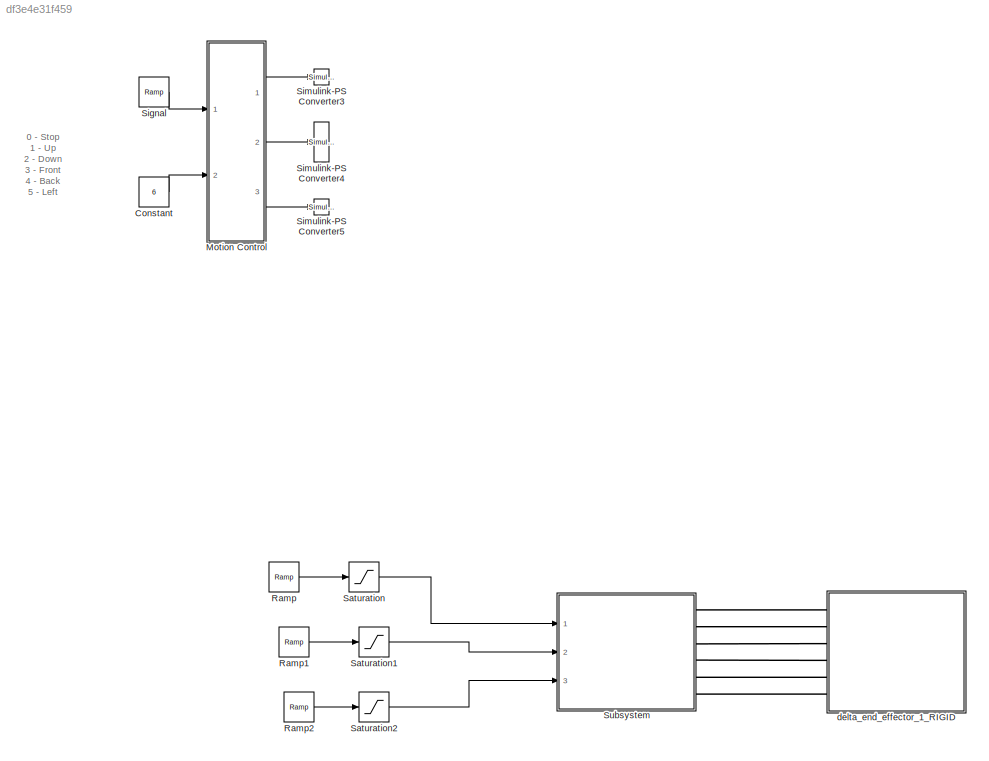
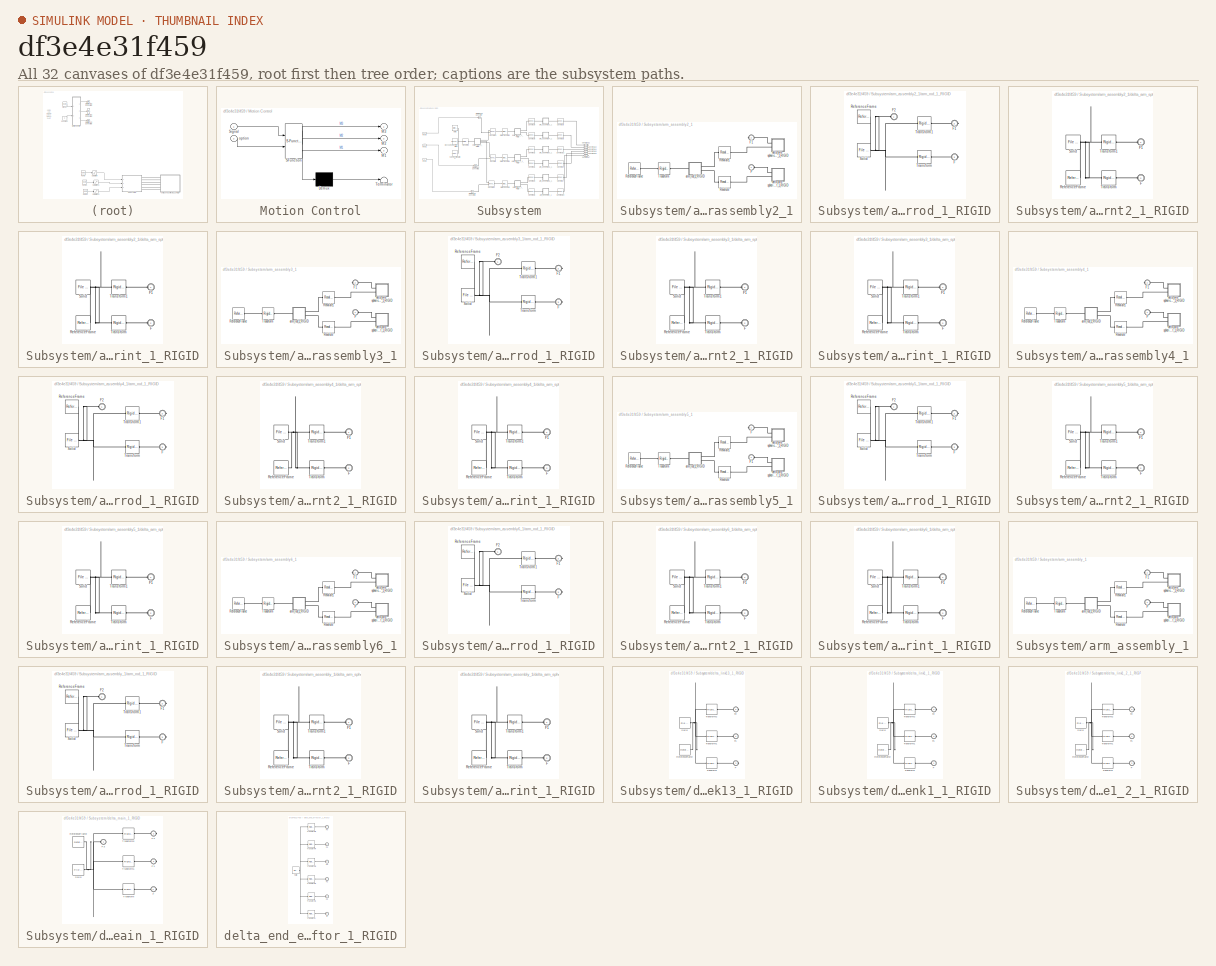
[diagram: thumbnail index - all 32 canvases of the model, root first then tree order]
MODEL slx_df3e4e31f459
KIND model
CONFIG AbsTol = auto
CONFIG EnableMultiTasking = off
CONFIG FixedStep = auto
CONFIG MaxStep = auto
CONFIG MinStep = auto
CONFIG RelTol = 1e-3
CONFIG SampleTimeConstraint = Unconstrained
CONFIG Solver = VariableStepAuto
CONFIG SolverName = VariableStepAuto
CONFIG StartTime = 0.0
CONFIG StopTime = 10.0
WORKSPACE source: external: MATLAB File  (data not in archive)
BLOCK [Constant] Constant
  Commented = on
  Value = 6
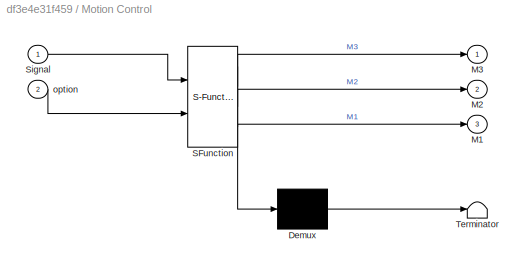
BLOCK [SubSystem] Motion Control
  Commented = on
  ErrorFcn = Stateflow.Translate.translate
  PermitHierarchicalResolution = ExplicitOnly
  Ports = [2, 3]
  RequestExecContextInheritance = off
  SFBlockType = MATLAB Function
  TreatAsAtomicUnit = on
BLOCK [Demux] Motion Control/ Demux 
  Outputs = 1
  Ports = [1, 1]
BLOCK [S-Function] Motion Control/ SFunction 
  EnableBusSupport = on
  FunctionName = sf_sfun
  PortCounts = [2 4]
  Ports = [2, 4]
  SFcnIsStateOwnerBlock = off
  SFunctionDeploymentMode = off
  Tag = Stateflow S-Function 2
BLOCK [Terminator] Motion Control/ Terminator 
BLOCK [Outport] Motion Control/M1
  Port = 3
BLOCK [Outport] Motion Control/M2
  Port = 2
BLOCK [Outport] Motion Control/M3
BLOCK [Inport] Motion Control/Signal
BLOCK [Inport] Motion Control/option
  Port = 2
BLOCK [Reference] Ramp  REF=simulink/Sources/Ramp
  Ports = [0, 1]
  SourceBlock = simulink/Sources/Ramp
  SourceProductBaseCode = SL
  SourceType = Ramp
BLOCK [Reference] Ramp1  REF=simulink/Sources/Ramp
  Ports = [0, 1]
  SourceBlock = simulink/Sources/Ramp
  SourceProductBaseCode = SL
  SourceType = Ramp
BLOCK [Reference] Ramp2  REF=simulink/Sources/Ramp
  Ports = [0, 1]
  SourceBlock = simulink/Sources/Ramp
  SourceProductBaseCode = SL
  SourceType = Ramp
BLOCK [Saturate] Saturation
  LowerLimit = 0
  UpperLimit = 1
BLOCK [Saturate] Saturation1
  LowerLimit = 0
  UpperLimit = 1
BLOCK [Saturate] Saturation2
  LowerLimit = 0
  UpperLimit = 1
BLOCK [Reference] Signal  REF=simulink/Sources/Ramp
  Commented = on
  Ports = [0, 1]
  SourceBlock = simulink/Sources/Ramp
  SourceProductBaseCode = SL
  SourceType = Ramp
BLOCK [Reference] Simulink-PS Converter3  REF=nesl_utility/Simulink-PS
Converter
  Commented = on
  Ports = [1, 0, 0, 0, 0, 0, 1]
  SourceBlock = nesl_utility/Simulink-PS\nConverter
  SourceProductBaseCode = SS
  SourceType = Simulink-PS\nConverter
BLOCK [Reference] Simulink-PS Converter4  REF=nesl_utility/Simulink-PS
Converter
  Commented = on
  Ports = [1, 0, 0, 0, 0, 0, 1]
  SourceBlock = nesl_utility/Simulink-PS\nConverter
  SourceProductBaseCode = SS
  SourceType = Simulink-PS\nConverter
BLOCK [Reference] Simulink-PS Converter5  REF=nesl_utility/Simulink-PS
Converter
  Commented = on
  Ports = [1, 0, 0, 0, 0, 0, 1]
  SourceBlock = nesl_utility/Simulink-PS\nConverter
  SourceProductBaseCode = SS
  SourceType = Simulink-PS\nConverter
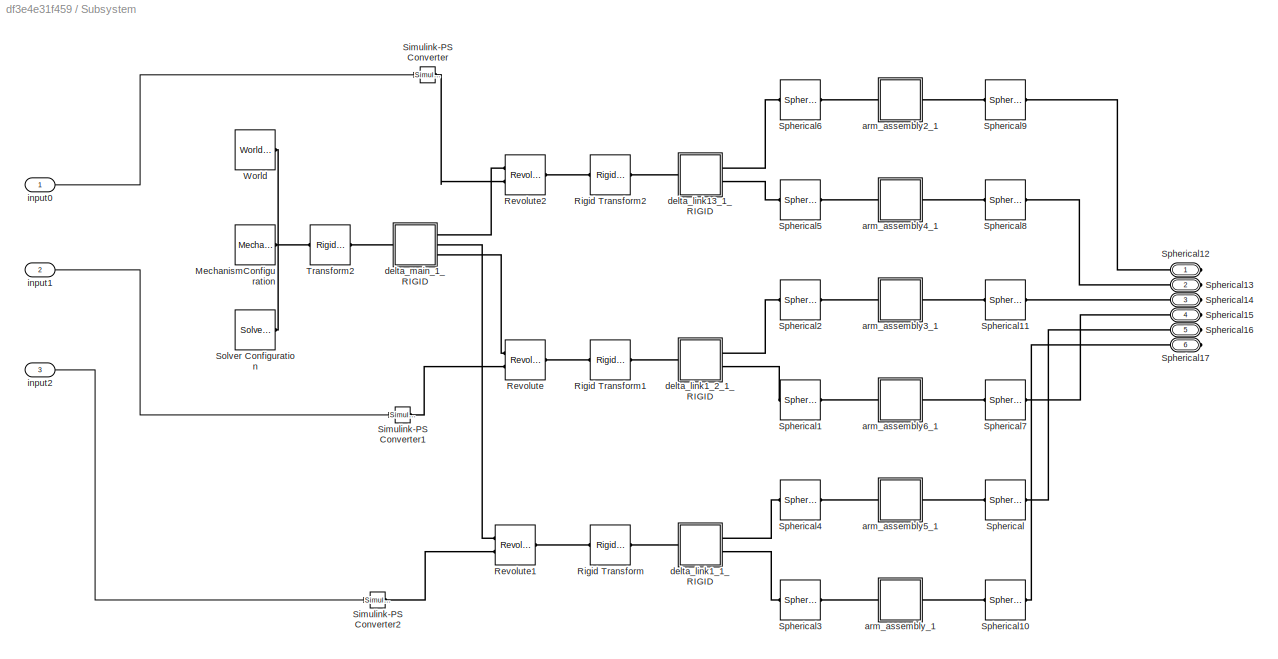
BLOCK [SubSystem] Subsystem
  Ports = [3, 0, 0, 0, 0, 0, 6]
  RequestExecContextInheritance = off
BLOCK [Reference] Subsystem/MechanismConfiguration  REF=sm_lib/Utilities/Mechanism
Configuration
  Ports = [0, 0, 0, 0, 0, 0, 1]
  SourceBlock = sm_lib/Utilities/Mechanism\nConfiguration
  SourceProductBaseCode = MS
  SourceType = Mechanism\nConfiguration
BLOCK [Reference] Subsystem/Revolute  REF=sm_lib/Joints/Revolute Joint
  Ports = [0, 0, 0, 0, 0, 2, 1]
  SourceBlock = sm_lib/Joints/Revolute Joint
  SourceProductBaseCode = MS
  SourceType = Revolute Joint
BLOCK [Reference] Subsystem/Revolute1  REF=sm_lib/Joints/Revolute Joint
  Ports = [0, 0, 0, 0, 0, 2, 1]
  SourceBlock = sm_lib/Joints/Revolute Joint
  SourceProductBaseCode = MS
  SourceType = Revolute Joint
BLOCK [Reference] Subsystem/Revolute2  REF=sm_lib/Joints/Revolute Joint
  Ports = [0, 0, 0, 0, 0, 2, 1]
  SourceBlock = sm_lib/Joints/Revolute Joint
  SourceProductBaseCode = MS
  SourceType = Revolute Joint
BLOCK [Reference] Subsystem/Rigid Transform  REF=sm_lib/Frames and
Transforms/Rigid
Transform
  Ports = [0, 0, 0, 0, 0, 1, 1]
  SourceBlock = sm_lib/Frames and\nTransforms/Rigid\nTransform
  SourceProductBaseCode = MS
  SourceType = Rigid\nTransform
BLOCK [Reference] Subsystem/Rigid Transform1  REF=sm_lib/Frames and
Transforms/Rigid
Transform
  Ports = [0, 0, 0, 0, 0, 1, 1]
  SourceBlock = sm_lib/Frames and\nTransforms/Rigid\nTransform
  SourceProductBaseCode = MS
  SourceType = Rigid\nTransform
BLOCK [Reference] Subsystem/Rigid Transform2  REF=sm_lib/Frames and
Transforms/Rigid
Transform
  Ports = [0, 0, 0, 0, 0, 1, 1]
  SourceBlock = sm_lib/Frames and\nTransforms/Rigid\nTransform
  SourceProductBaseCode = MS
  SourceType = Rigid\nTransform
BLOCK [Reference] Subsystem/Simulink-PS Converter  REF=nesl_utility/Simulink-PS
Converter
  Ports = [1, 0, 0, 0, 0, 0, 1]
  SourceBlock = nesl_utility/Simulink-PS\nConverter
  SourceProductBaseCode = SS
  SourceType = Simulink-PS\nConverter
BLOCK [Reference] Subsystem/Simulink-PS Converter1  REF=nesl_utility/Simulink-PS
Converter
  Ports = [1, 0, 0, 0, 0, 0, 1]
  SourceBlock = nesl_utility/Simulink-PS\nConverter
  SourceProductBaseCode = SS
  SourceType = Simulink-PS\nConverter
BLOCK [Reference] Subsystem/Simulink-PS Converter2  REF=nesl_utility/Simulink-PS
Converter
  Ports = [1, 0, 0, 0, 0, 0, 1]
  SourceBlock = nesl_utility/Simulink-PS\nConverter
  SourceProductBaseCode = SS
  SourceType = Simulink-PS\nConverter
BLOCK [Reference] Subsystem/Solver Configuration  REF=nesl_utility/Solver
Configuration
  Ports = [0, 0, 0, 0, 0, 0, 1]
  SourceBlock = nesl_utility/Solver\nConfiguration
  SourceProductBaseCode = SS
  SourceType = Solver\nConfiguration
BLOCK [Reference] Subsystem/Spherical  REF=sm_lib/Joints/Spherical
Joint
  Ports = [0, 0, 0, 0, 0, 1, 1]
  SourceBlock = sm_lib/Joints/Spherical\nJoint
  SourceProductBaseCode = MS
  SourceType = Spherical\nJoint
BLOCK [Reference] Subsystem/Spherical1  REF=sm_lib/Joints/Spherical
Joint
  Ports = [0, 0, 0, 0, 0, 1, 1]
  SourceBlock = sm_lib/Joints/Spherical\nJoint
  SourceProductBaseCode = MS
  SourceType = Spherical\nJoint
BLOCK [Reference] Subsystem/Spherical10  REF=sm_lib/Joints/Spherical
Joint
  Ports = [0, 0, 0, 0, 0, 1, 1]
  SourceBlock = sm_lib/Joints/Spherical\nJoint
  SourceProductBaseCode = MS
  SourceType = Spherical\nJoint
BLOCK [Reference] Subsystem/Spherical11  REF=sm_lib/Joints/Spherical
Joint
  Ports = [0, 0, 0, 0, 0, 1, 1]
  SourceBlock = sm_lib/Joints/Spherical\nJoint
  SourceProductBaseCode = MS
  SourceType = Spherical\nJoint
BLOCK [PMIOPort] Subsystem/Spherical12
  Side = Right
BLOCK [PMIOPort] Subsystem/Spherical13
  Port = 2
  Side = Right
BLOCK [PMIOPort] Subsystem/Spherical14
  Port = 3
  Side = Right
BLOCK [PMIOPort] Subsystem/Spherical15
  Port = 4
  Side = Right
BLOCK [PMIOPort] Subsystem/Spherical16
  Port = 5
  Side = Right
BLOCK [PMIOPort] Subsystem/Spherical17
  Port = 6
  Side = Right
BLOCK [Reference] Subsystem/Spherical2  REF=sm_lib/Joints/Spherical
Joint
  Ports = [0, 0, 0, 0, 0, 1, 1]
  SourceBlock = sm_lib/Joints/Spherical\nJoint
  SourceProductBaseCode = MS
  SourceType = Spherical\nJoint
BLOCK [Reference] Subsystem/Spherical3  REF=sm_lib/Joints/Spherical
Joint
  Ports = [0, 0, 0, 0, 0, 1, 1]
  SourceBlock = sm_lib/Joints/Spherical\nJoint
  SourceProductBaseCode = MS
  SourceType = Spherical\nJoint
BLOCK [Reference] Subsystem/Spherical4  REF=sm_lib/Joints/Spherical
Joint
  Ports = [0, 0, 0, 0, 0, 1, 1]
  SourceBlock = sm_lib/Joints/Spherical\nJoint
  SourceProductBaseCode = MS
  SourceType = Spherical\nJoint
BLOCK [Reference] Subsystem/Spherical5  REF=sm_lib/Joints/Spherical
Joint
  Ports = [0, 0, 0, 0, 0, 1, 1]
  SourceBlock = sm_lib/Joints/Spherical\nJoint
  SourceProductBaseCode = MS
  SourceType = Spherical\nJoint
BLOCK [Reference] Subsystem/Spherical6  REF=sm_lib/Joints/Spherical
Joint
  Ports = [0, 0, 0, 0, 0, 1, 1]
  SourceBlock = sm_lib/Joints/Spherical\nJoint
  SourceProductBaseCode = MS
  SourceType = Spherical\nJoint
BLOCK [Reference] Subsystem/Spherical7  REF=sm_lib/Joints/Spherical
Joint
  Ports = [0, 0, 0, 0, 0, 1, 1]
  SourceBlock = sm_lib/Joints/Spherical\nJoint
  SourceProductBaseCode = MS
  SourceType = Spherical\nJoint
BLOCK [Reference] Subsystem/Spherical8  REF=sm_lib/Joints/Spherical
Joint
  Ports = [0, 0, 0, 0, 0, 1, 1]
  SourceBlock = sm_lib/Joints/Spherical\nJoint
  SourceProductBaseCode = MS
  SourceType = Spherical\nJoint
BLOCK [Reference] Subsystem/Spherical9  REF=sm_lib/Joints/Spherical
Joint
  Ports = [0, 0, 0, 0, 0, 1, 1]
  SourceBlock = sm_lib/Joints/Spherical\nJoint
  SourceProductBaseCode = MS
  SourceType = Spherical\nJoint
BLOCK [Reference] Subsystem/Transform2  REF=sm_lib/Frames and
Transforms/Rigid
Transform
  Ports = [0, 0, 0, 0, 0, 1, 1]
  SourceBlock = sm_lib/Frames and\nTransforms/Rigid\nTransform
  SourceProductBaseCode = MS
  SourceType = Rigid\nTransform
BLOCK [Reference] Subsystem/World  REF=sm_lib/Frames and
Transforms/World Frame
  Ports = [0, 0, 0, 0, 0, 0, 1]
  SourceBlock = sm_lib/Frames and\nTransforms/World Frame
  SourceProductBaseCode = MS
  SourceType = World Frame
BLOCK [SubSystem] Subsystem/arm_assembly2_1
  Ports = [0, 0, 0, 0, 0, 1, 1]
  RequestExecContextInheritance = off
BLOCK [PMIOPort] Subsystem/arm_assembly2_1/F
  Side = Left
BLOCK [PMIOPort] Subsystem/arm_assembly2_1/F1
  Port = 2
  Side = Right
BLOCK [Reference] Subsystem/arm_assembly2_1/ReferenceFrame  REF=sm_lib/Frames and
Transforms/Reference
Frame
  Ports = [0, 0, 0, 0, 0, 0, 1]
  SourceBlock = sm_lib/Frames and\nTransforms/Reference\nFrame
  SourceProductBaseCode = MS
  SourceType = Reference\nFrame
BLOCK [Reference] Subsystem/arm_assembly2_1/Revolute  REF=sm_lib/Joints/Revolute Joint
  Ports = [0, 0, 0, 0, 0, 1, 1]
  SourceBlock = sm_lib/Joints/Revolute Joint
  SourceProductBaseCode = MS
  SourceType = Revolute Joint
BLOCK [Reference] Subsystem/arm_assembly2_1/Revolute1  REF=sm_lib/Joints/Revolute Joint
  Ports = [0, 0, 0, 0, 0, 1, 1]
  SourceBlock = sm_lib/Joints/Revolute Joint
  SourceProductBaseCode = MS
  SourceType = Revolute Joint
BLOCK [Reference] Subsystem/arm_assembly2_1/Transform  REF=sm_lib/Frames and
Transforms/Rigid
Transform
  Ports = [0, 0, 0, 0, 0, 1, 1]
  SourceBlock = sm_lib/Frames and\nTransforms/Rigid\nTransform
  SourceProductBaseCode = MS
  SourceType = Rigid\nTransform
BLOCK [SubSystem] Subsystem/arm_assembly2_1/arm_rod_1_RIGID
  Ports = [0, 0, 0, 0, 0, 1, 2]
  RequestExecContextInheritance = off
BLOCK [PMIOPort] Subsystem/arm_assembly2_1/arm_rod_1_RIGID/F
  Port = 3
  Side = Right
BLOCK [PMIOPort] Subsystem/arm_assembly2_1/arm_rod_1_RIGID/F1
  Port = 2
  Side = Right
BLOCK [PMIOPort] Subsystem/arm_assembly2_1/arm_rod_1_RIGID/F2
  Side = Left
BLOCK [Reference] Subsystem/arm_assembly2_1/arm_rod_1_RIGID/ReferenceFrame  REF=sm_lib/Frames and
Transforms/Reference
Frame
  Ports = [0, 0, 0, 0, 0, 0, 1]
  SourceBlock = sm_lib/Frames and\nTransforms/Reference\nFrame
  SourceProductBaseCode = MS
  SourceType = Reference\nFrame
BLOCK [Reference] Subsystem/arm_assembly2_1/arm_rod_1_RIGID/Solid  REF=sm_lib/Body Elements/File Solid
  Ports = [0, 0, 0, 0, 0, 0, 1]
  SourceBlock = sm_lib/Body Elements/File Solid
  SourceProductBaseCode = MS
  SourceType = File Solid
BLOCK [Reference] Subsystem/arm_assembly2_1/arm_rod_1_RIGID/Transform  REF=sm_lib/Frames and
Transforms/Rigid
Transform
  Ports = [0, 0, 0, 0, 0, 1, 1]
  SourceBlock = sm_lib/Frames and\nTransforms/Rigid\nTransform
  SourceProductBaseCode = MS
  SourceType = Rigid\nTransform
BLOCK [Reference] Subsystem/arm_assembly2_1/arm_rod_1_RIGID/Transform1  REF=sm_lib/Frames and
Transforms/Rigid
Transform
  Ports = [0, 0, 0, 0, 0, 1, 1]
  SourceBlock = sm_lib/Frames and\nTransforms/Rigid\nTransform
  SourceProductBaseCode = MS
  SourceType = Rigid\nTransform
BLOCK [SubSystem] Subsystem/arm_assembly2_1/delta_arm_spherical_joint2_1_RIGID
  Ports = [0, 0, 0, 0, 0, 2]
  RequestExecContextInheritance = off
BLOCK [PMIOPort] Subsystem/arm_assembly2_1/delta_arm_spherical_joint2_1_RIGID/F
  Port = 2
  Side = Left
BLOCK [PMIOPort] Subsystem/arm_assembly2_1/delta_arm_spherical_joint2_1_RIGID/F1
  Side = Left
BLOCK [Reference] Subsystem/arm_assembly2_1/delta_arm_spherical_joint2_1_RIGID/ReferenceFrame  REF=sm_lib/Frames and
Transforms/Reference
Frame
  Ports = [0, 0, 0, 0, 0, 0, 1]
  SourceBlock = sm_lib/Frames and\nTransforms/Reference\nFrame
  SourceProductBaseCode = MS
  SourceType = Reference\nFrame
BLOCK [Reference] Subsystem/arm_assembly2_1/delta_arm_spherical_joint2_1_RIGID/Solid  REF=sm_lib/Body Elements/File Solid
  Ports = [0, 0, 0, 0, 0, 0, 1]
  SourceBlock = sm_lib/Body Elements/File Solid
  SourceProductBaseCode = MS
  SourceType = File Solid
BLOCK [Reference] Subsystem/arm_assembly2_1/delta_arm_spherical_joint2_1_RIGID/Transform  REF=sm_lib/Frames and
Transforms/Rigid
Transform
  Ports = [0, 0, 0, 0, 0, 1, 1]
  SourceBlock = sm_lib/Frames and\nTransforms/Rigid\nTransform
  SourceProductBaseCode = MS
  SourceType = Rigid\nTransform
BLOCK [Reference] Subsystem/arm_assembly2_1/delta_arm_spherical_joint2_1_RIGID/Transform1  REF=sm_lib/Frames and
Transforms/Rigid
Transform
  Ports = [0, 0, 0, 0, 0, 1, 1]
  SourceBlock = sm_lib/Frames and\nTransforms/Rigid\nTransform
  SourceProductBaseCode = MS
  SourceType = Rigid\nTransform
BLOCK [SubSystem] Subsystem/arm_assembly2_1/delta_arm_spherical_joint_1_RIGID
  Ports = [0, 0, 0, 0, 0, 2]
  RequestExecContextInheritance = off
BLOCK [PMIOPort] Subsystem/arm_assembly2_1/delta_arm_spherical_joint_1_RIGID/F
  Port = 2
  Side = Left
BLOCK [PMIOPort] Subsystem/arm_assembly2_1/delta_arm_spherical_joint_1_RIGID/F1
  Side = Left
BLOCK [Reference] Subsystem/arm_assembly2_1/delta_arm_spherical_joint_1_RIGID/ReferenceFrame  REF=sm_lib/Frames and
Transforms/Reference
Frame
  Ports = [0, 0, 0, 0, 0, 0, 1]
  SourceBlock = sm_lib/Frames and\nTransforms/Reference\nFrame
  SourceProductBaseCode = MS
  SourceType = Reference\nFrame
BLOCK [Reference] Subsystem/arm_assembly2_1/delta_arm_spherical_joint_1_RIGID/Solid  REF=sm_lib/Body Elements/File Solid
  Ports = [0, 0, 0, 0, 0, 0, 1]
  SourceBlock = sm_lib/Body Elements/File Solid
  SourceProductBaseCode = MS
  SourceType = File Solid
BLOCK [Reference] Subsystem/arm_assembly2_1/delta_arm_spherical_joint_1_RIGID/Transform  REF=sm_lib/Frames and
Transforms/Rigid
Transform
  Ports = [0, 0, 0, 0, 0, 1, 1]
  SourceBlock = sm_lib/Frames and\nTransforms/Rigid\nTransform
  SourceProductBaseCode = MS
  SourceType = Rigid\nTransform
BLOCK [Reference] Subsystem/arm_assembly2_1/delta_arm_spherical_joint_1_RIGID/Transform1  REF=sm_lib/Frames and
Transforms/Rigid
Transform
  Ports = [0, 0, 0, 0, 0, 1, 1]
  SourceBlock = sm_lib/Frames and\nTransforms/Rigid\nTransform
  SourceProductBaseCode = MS
  SourceType = Rigid\nTransform
BLOCK [SubSystem] Subsystem/arm_assembly3_1
  Ports = [0, 0, 0, 0, 0, 1, 1]
  RequestExecContextInheritance = off
BLOCK [PMIOPort] Subsystem/arm_assembly3_1/F
  Side = Left
BLOCK [PMIOPort] Subsystem/arm_assembly3_1/F1
  Port = 2
  Side = Right
BLOCK [Reference] Subsystem/arm_assembly3_1/ReferenceFrame  REF=sm_lib/Frames and
Transforms/Reference
Frame
  Ports = [0, 0, 0, 0, 0, 0, 1]
  SourceBlock = sm_lib/Frames and\nTransforms/Reference\nFrame
  SourceProductBaseCode = MS
  SourceType = Reference\nFrame
BLOCK [Reference] Subsystem/arm_assembly3_1/Revolute  REF=sm_lib/Joints/Revolute Joint
  Ports = [0, 0, 0, 0, 0, 1, 1]
  SourceBlock = sm_lib/Joints/Revolute Joint
  SourceProductBaseCode = MS
  SourceType = Revolute Joint
BLOCK [Reference] Subsystem/arm_assembly3_1/Revolute1  REF=sm_lib/Joints/Revolute Joint
  Ports = [0, 0, 0, 0, 0, 1, 1]
  SourceBlock = sm_lib/Joints/Revolute Joint
  SourceProductBaseCode = MS
  SourceType = Revolute Joint
BLOCK [Reference] Subsystem/arm_assembly3_1/Transform  REF=sm_lib/Frames and
Transforms/Rigid
Transform
  Ports = [0, 0, 0, 0, 0, 1, 1]
  SourceBlock = sm_lib/Frames and\nTransforms/Rigid\nTransform
  SourceProductBaseCode = MS
  SourceType = Rigid\nTransform
BLOCK [SubSystem] Subsystem/arm_assembly3_1/arm_rod_1_RIGID
  Ports = [0, 0, 0, 0, 0, 1, 2]
  RequestExecContextInheritance = off
BLOCK [PMIOPort] Subsystem/arm_assembly3_1/arm_rod_1_RIGID/F
  Port = 3
  Side = Right
BLOCK [PMIOPort] Subsystem/arm_assembly3_1/arm_rod_1_RIGID/F1
  Port = 2
  Side = Right
BLOCK [PMIOPort] Subsystem/arm_assembly3_1/arm_rod_1_RIGID/F2
  Side = Left
BLOCK [Reference] Subsystem/arm_assembly3_1/arm_rod_1_RIGID/ReferenceFrame  REF=sm_lib/Frames and
Transforms/Reference
Frame
  Ports = [0, 0, 0, 0, 0, 0, 1]
  SourceBlock = sm_lib/Frames and\nTransforms/Reference\nFrame
  SourceProductBaseCode = MS
  SourceType = Reference\nFrame
BLOCK [Reference] Subsystem/arm_assembly3_1/arm_rod_1_RIGID/Solid  REF=sm_lib/Body Elements/File Solid
  Ports = [0, 0, 0, 0, 0, 0, 1]
  SourceBlock = sm_lib/Body Elements/File Solid
  SourceProductBaseCode = MS
  SourceType = File Solid
BLOCK [Reference] Subsystem/arm_assembly3_1/arm_rod_1_RIGID/Transform  REF=sm_lib/Frames and
Transforms/Rigid
Transform
  Ports = [0, 0, 0, 0, 0, 1, 1]
  SourceBlock = sm_lib/Frames and\nTransforms/Rigid\nTransform
  SourceProductBaseCode = MS
  SourceType = Rigid\nTransform
BLOCK [Reference] Subsystem/arm_assembly3_1/arm_rod_1_RIGID/Transform1  REF=sm_lib/Frames and
Transforms/Rigid
Transform
  Ports = [0, 0, 0, 0, 0, 1, 1]
  SourceBlock = sm_lib/Frames and\nTransforms/Rigid\nTransform
  SourceProductBaseCode = MS
  SourceType = Rigid\nTransform
BLOCK [SubSystem] Subsystem/arm_assembly3_1/delta_arm_spherical_joint2_1_RIGID
  Ports = [0, 0, 0, 0, 0, 2]
  RequestExecContextInheritance = off
BLOCK [PMIOPort] Subsystem/arm_assembly3_1/delta_arm_spherical_joint2_1_RIGID/F
  Port = 2
  Side = Left
BLOCK [PMIOPort] Subsystem/arm_assembly3_1/delta_arm_spherical_joint2_1_RIGID/F1
  Side = Left
BLOCK [Reference] Subsystem/arm_assembly3_1/delta_arm_spherical_joint2_1_RIGID/ReferenceFrame  REF=sm_lib/Frames and
Transforms/Reference
Frame
  Ports = [0, 0, 0, 0, 0, 0, 1]
  SourceBlock = sm_lib/Frames and\nTransforms/Reference\nFrame
  SourceProductBaseCode = MS
  SourceType = Reference\nFrame
BLOCK [Reference] Subsystem/arm_assembly3_1/delta_arm_spherical_joint2_1_RIGID/Solid  REF=sm_lib/Body Elements/File Solid
  Ports = [0, 0, 0, 0, 0, 0, 1]
  SourceBlock = sm_lib/Body Elements/File Solid
  SourceProductBaseCode = MS
  SourceType = File Solid
BLOCK [Reference] Subsystem/arm_assembly3_1/delta_arm_spherical_joint2_1_RIGID/Transform  REF=sm_lib/Frames and
Transforms/Rigid
Transform
  Ports = [0, 0, 0, 0, 0, 1, 1]
  SourceBlock = sm_lib/Frames and\nTransforms/Rigid\nTransform
  SourceProductBaseCode = MS
  SourceType = Rigid\nTransform
BLOCK [Reference] Subsystem/arm_assembly3_1/delta_arm_spherical_joint2_1_RIGID/Transform1  REF=sm_lib/Frames and
Transforms/Rigid
Transform
  Ports = [0, 0, 0, 0, 0, 1, 1]
  SourceBlock = sm_lib/Frames and\nTransforms/Rigid\nTransform
  SourceProductBaseCode = MS
  SourceType = Rigid\nTransform
BLOCK [SubSystem] Subsystem/arm_assembly3_1/delta_arm_spherical_joint_1_RIGID
  Ports = [0, 0, 0, 0, 0, 2]
  RequestExecContextInheritance = off
BLOCK [PMIOPort] Subsystem/arm_assembly3_1/delta_arm_spherical_joint_1_RIGID/F
  Port = 2
  Side = Left
BLOCK [PMIOPort] Subsystem/arm_assembly3_1/delta_arm_spherical_joint_1_RIGID/F1
  Side = Left
BLOCK [Reference] Subsystem/arm_assembly3_1/delta_arm_spherical_joint_1_RIGID/ReferenceFrame  REF=sm_lib/Frames and
Transforms/Reference
Frame
  Ports = [0, 0, 0, 0, 0, 0, 1]
  SourceBlock = sm_lib/Frames and\nTransforms/Reference\nFrame
  SourceProductBaseCode = MS
  SourceType = Reference\nFrame
BLOCK [Reference] Subsystem/arm_assembly3_1/delta_arm_spherical_joint_1_RIGID/Solid  REF=sm_lib/Body Elements/File Solid
  Ports = [0, 0, 0, 0, 0, 0, 1]
  SourceBlock = sm_lib/Body Elements/File Solid
  SourceProductBaseCode = MS
  SourceType = File Solid
BLOCK [Reference] Subsystem/arm_assembly3_1/delta_arm_spherical_joint_1_RIGID/Transform  REF=sm_lib/Frames and
Transforms/Rigid
Transform
  Ports = [0, 0, 0, 0, 0, 1, 1]
  SourceBlock = sm_lib/Frames and\nTransforms/Rigid\nTransform
  SourceProductBaseCode = MS
  SourceType = Rigid\nTransform
BLOCK [Reference] Subsystem/arm_assembly3_1/delta_arm_spherical_joint_1_RIGID/Transform1  REF=sm_lib/Frames and
Transforms/Rigid
Transform
  Ports = [0, 0, 0, 0, 0, 1, 1]
  SourceBlock = sm_lib/Frames and\nTransforms/Rigid\nTransform
  SourceProductBaseCode = MS
  SourceType = Rigid\nTransform
BLOCK [SubSystem] Subsystem/arm_assembly4_1
  Ports = [0, 0, 0, 0, 0, 1, 1]
  RequestExecContextInheritance = off
BLOCK [PMIOPort] Subsystem/arm_assembly4_1/F
  Side = Left
BLOCK [PMIOPort] Subsystem/arm_assembly4_1/F1
  Port = 2
  Side = Right
BLOCK [Reference] Subsystem/arm_assembly4_1/ReferenceFrame  REF=sm_lib/Frames and
Transforms/Reference
Frame
  Ports = [0, 0, 0, 0, 0, 0, 1]
  SourceBlock = sm_lib/Frames and\nTransforms/Reference\nFrame
  SourceProductBaseCode = MS
  SourceType = Reference\nFrame
BLOCK [Reference] Subsystem/arm_assembly4_1/Revolute  REF=sm_lib/Joints/Revolute Joint
  Ports = [0, 0, 0, 0, 0, 1, 1]
  SourceBlock = sm_lib/Joints/Revolute Joint
  SourceProductBaseCode = MS
  SourceType = Revolute Joint
BLOCK [Reference] Subsystem/arm_assembly4_1/Revolute1  REF=sm_lib/Joints/Revolute Joint
  Ports = [0, 0, 0, 0, 0, 1, 1]
  SourceBlock = sm_lib/Joints/Revolute Joint
  SourceProductBaseCode = MS
  SourceType = Revolute Joint
BLOCK [Reference] Subsystem/arm_assembly4_1/Transform  REF=sm_lib/Frames and
Transforms/Rigid
Transform
  Ports = [0, 0, 0, 0, 0, 1, 1]
  SourceBlock = sm_lib/Frames and\nTransforms/Rigid\nTransform
  SourceProductBaseCode = MS
  SourceType = Rigid\nTransform
BLOCK [SubSystem] Subsystem/arm_assembly4_1/arm_rod_1_RIGID
  Ports = [0, 0, 0, 0, 0, 1, 2]
  RequestExecContextInheritance = off
BLOCK [PMIOPort] Subsystem/arm_assembly4_1/arm_rod_1_RIGID/F
  Port = 3
  Side = Right
BLOCK [PMIOPort] Subsystem/arm_assembly4_1/arm_rod_1_RIGID/F1
  Port = 2
  Side = Right
BLOCK [PMIOPort] Subsystem/arm_assembly4_1/arm_rod_1_RIGID/F2
  Side = Left
BLOCK [Reference] Subsystem/arm_assembly4_1/arm_rod_1_RIGID/ReferenceFrame  REF=sm_lib/Frames and
Transforms/Reference
Frame
  Ports = [0, 0, 0, 0, 0, 0, 1]
  SourceBlock = sm_lib/Frames and\nTransforms/Reference\nFrame
  SourceProductBaseCode = MS
  SourceType = Reference\nFrame
BLOCK [Reference] Subsystem/arm_assembly4_1/arm_rod_1_RIGID/Solid  REF=sm_lib/Body Elements/File Solid
  Ports = [0, 0, 0, 0, 0, 0, 1]
  SourceBlock = sm_lib/Body Elements/File Solid
  SourceProductBaseCode = MS
  SourceType = File Solid
BLOCK [Reference] Subsystem/arm_assembly4_1/arm_rod_1_RIGID/Transform  REF=sm_lib/Frames and
Transforms/Rigid
Transform
  Ports = [0, 0, 0, 0, 0, 1, 1]
  SourceBlock = sm_lib/Frames and\nTransforms/Rigid\nTransform
  SourceProductBaseCode = MS
  SourceType = Rigid\nTransform
BLOCK [Reference] Subsystem/arm_assembly4_1/arm_rod_1_RIGID/Transform1  REF=sm_lib/Frames and
Transforms/Rigid
Transform
  Ports = [0, 0, 0, 0, 0, 1, 1]
  SourceBlock = sm_lib/Frames and\nTransforms/Rigid\nTransform
  SourceProductBaseCode = MS
  SourceType = Rigid\nTransform
BLOCK [SubSystem] Subsystem/arm_assembly4_1/delta_arm_spherical_joint2_1_RIGID
  Ports = [0, 0, 0, 0, 0, 2]
  RequestExecContextInheritance = off
BLOCK [PMIOPort] Subsystem/arm_assembly4_1/delta_arm_spherical_joint2_1_RIGID/F
  Port = 2
  Side = Left
BLOCK [PMIOPort] Subsystem/arm_assembly4_1/delta_arm_spherical_joint2_1_RIGID/F1
  Side = Left
BLOCK [Reference] Subsystem/arm_assembly4_1/delta_arm_spherical_joint2_1_RIGID/ReferenceFrame  REF=sm_lib/Frames and
Transforms/Reference
Frame
  Ports = [0, 0, 0, 0, 0, 0, 1]
  SourceBlock = sm_lib/Frames and\nTransforms/Reference\nFrame
  SourceProductBaseCode = MS
  SourceType = Reference\nFrame
BLOCK [Reference] Subsystem/arm_assembly4_1/delta_arm_spherical_joint2_1_RIGID/Solid  REF=sm_lib/Body Elements/File Solid
  Ports = [0, 0, 0, 0, 0, 0, 1]
  SourceBlock = sm_lib/Body Elements/File Solid
  SourceProductBaseCode = MS
  SourceType = File Solid
BLOCK [Reference] Subsystem/arm_assembly4_1/delta_arm_spherical_joint2_1_RIGID/Transform  REF=sm_lib/Frames and
Transforms/Rigid
Transform
  Ports = [0, 0, 0, 0, 0, 1, 1]
  SourceBlock = sm_lib/Frames and\nTransforms/Rigid\nTransform
  SourceProductBaseCode = MS
  SourceType = Rigid\nTransform
BLOCK [Reference] Subsystem/arm_assembly4_1/delta_arm_spherical_joint2_1_RIGID/Transform1  REF=sm_lib/Frames and
Transforms/Rigid
Transform
  Ports = [0, 0, 0, 0, 0, 1, 1]
  SourceBlock = sm_lib/Frames and\nTransforms/Rigid\nTransform
  SourceProductBaseCode = MS
  SourceType = Rigid\nTransform
BLOCK [SubSystem] Subsystem/arm_assembly4_1/delta_arm_spherical_joint_1_RIGID
  Ports = [0, 0, 0, 0, 0, 2]
  RequestExecContextInheritance = off
BLOCK [PMIOPort] Subsystem/arm_assembly4_1/delta_arm_spherical_joint_1_RIGID/F
  Port = 2
  Side = Left
BLOCK [PMIOPort] Subsystem/arm_assembly4_1/delta_arm_spherical_joint_1_RIGID/F1
  Side = Left
BLOCK [Reference] Subsystem/arm_assembly4_1/delta_arm_spherical_joint_1_RIGID/ReferenceFrame  REF=sm_lib/Frames and
Transforms/Reference
Frame
  Ports = [0, 0, 0, 0, 0, 0, 1]
  SourceBlock = sm_lib/Frames and\nTransforms/Reference\nFrame
  SourceProductBaseCode = MS
  SourceType = Reference\nFrame
BLOCK [Reference] Subsystem/arm_assembly4_1/delta_arm_spherical_joint_1_RIGID/Solid  REF=sm_lib/Body Elements/File Solid
  Ports = [0, 0, 0, 0, 0, 0, 1]
  SourceBlock = sm_lib/Body Elements/File Solid
  SourceProductBaseCode = MS
  SourceType = File Solid
BLOCK [Reference] Subsystem/arm_assembly4_1/delta_arm_spherical_joint_1_RIGID/Transform  REF=sm_lib/Frames and
Transforms/Rigid
Transform
  Ports = [0, 0, 0, 0, 0, 1, 1]
  SourceBlock = sm_lib/Frames and\nTransforms/Rigid\nTransform
  SourceProductBaseCode = MS
  SourceType = Rigid\nTransform
BLOCK [Reference] Subsystem/arm_assembly4_1/delta_arm_spherical_joint_1_RIGID/Transform1  REF=sm_lib/Frames and
Transforms/Rigid
Transform
  Ports = [0, 0, 0, 0, 0, 1, 1]
  SourceBlock = sm_lib/Frames and\nTransforms/Rigid\nTransform
  SourceProductBaseCode = MS
  SourceType = Rigid\nTransform
BLOCK [SubSystem] Subsystem/arm_assembly5_1
  Ports = [0, 0, 0, 0, 0, 1, 1]
  RequestExecContextInheritance = off
BLOCK [PMIOPort] Subsystem/arm_assembly5_1/F
  Port = 2
  Side = Right
BLOCK [PMIOPort] Subsystem/arm_assembly5_1/F1
  Side = Left
BLOCK [Reference] Subsystem/arm_assembly5_1/ReferenceFrame  REF=sm_lib/Frames and
Transforms/Reference
Frame
  Ports = [0, 0, 0, 0, 0, 0, 1]
  SourceBlock = sm_lib/Frames and\nTransforms/Reference\nFrame
  SourceProductBaseCode = MS
  SourceType = Reference\nFrame
BLOCK [Reference] Subsystem/arm_assembly5_1/Revolute  REF=sm_lib/Joints/Revolute Joint
  Ports = [0, 0, 0, 0, 0, 1, 1]
  SourceBlock = sm_lib/Joints/Revolute Joint
  SourceProductBaseCode = MS
  SourceType = Revolute Joint
BLOCK [Reference] Subsystem/arm_assembly5_1/Revolute1  REF=sm_lib/Joints/Revolute Joint
  Ports = [0, 0, 0, 0, 0, 1, 1]
  SourceBlock = sm_lib/Joints/Revolute Joint
  SourceProductBaseCode = MS
  SourceType = Revolute Joint
BLOCK [Reference] Subsystem/arm_assembly5_1/Transform  REF=sm_lib/Frames and
Transforms/Rigid
Transform
  Ports = [0, 0, 0, 0, 0, 1, 1]
  SourceBlock = sm_lib/Frames and\nTransforms/Rigid\nTransform
  SourceProductBaseCode = MS
  SourceType = Rigid\nTransform
BLOCK [SubSystem] Subsystem/arm_assembly5_1/arm_rod_1_RIGID
  Ports = [0, 0, 0, 0, 0, 1, 2]
  RequestExecContextInheritance = off
BLOCK [PMIOPort] Subsystem/arm_assembly5_1/arm_rod_1_RIGID/F
  Port = 3
  Side = Right
BLOCK [PMIOPort] Subsystem/arm_assembly5_1/arm_rod_1_RIGID/F1
  Port = 2
  Side = Right
BLOCK [PMIOPort] Subsystem/arm_assembly5_1/arm_rod_1_RIGID/F2
  Side = Left
BLOCK [Reference] Subsystem/arm_assembly5_1/arm_rod_1_RIGID/ReferenceFrame  REF=sm_lib/Frames and
Transforms/Reference
Frame
  Ports = [0, 0, 0, 0, 0, 0, 1]
  SourceBlock = sm_lib/Frames and\nTransforms/Reference\nFrame
  SourceProductBaseCode = MS
  SourceType = Reference\nFrame
BLOCK [Reference] Subsystem/arm_assembly5_1/arm_rod_1_RIGID/Solid  REF=sm_lib/Body Elements/File Solid
  Ports = [0, 0, 0, 0, 0, 0, 1]
  SourceBlock = sm_lib/Body Elements/File Solid
  SourceProductBaseCode = MS
  SourceType = File Solid
BLOCK [Reference] Subsystem/arm_assembly5_1/arm_rod_1_RIGID/Transform  REF=sm_lib/Frames and
Transforms/Rigid
Transform
  Ports = [0, 0, 0, 0, 0, 1, 1]
  SourceBlock = sm_lib/Frames and\nTransforms/Rigid\nTransform
  SourceProductBaseCode = MS
  SourceType = Rigid\nTransform
BLOCK [Reference] Subsystem/arm_assembly5_1/arm_rod_1_RIGID/Transform1  REF=sm_lib/Frames and
Transforms/Rigid
Transform
  Ports = [0, 0, 0, 0, 0, 1, 1]
  SourceBlock = sm_lib/Frames and\nTransforms/Rigid\nTransform
  SourceProductBaseCode = MS
  SourceType = Rigid\nTransform
BLOCK [SubSystem] Subsystem/arm_assembly5_1/delta_arm_spherical_joint2_1_RIGID
  Ports = [0, 0, 0, 0, 0, 2]
  RequestExecContextInheritance = off
BLOCK [PMIOPort] Subsystem/arm_assembly5_1/delta_arm_spherical_joint2_1_RIGID/F
  Port = 2
  Side = Left
BLOCK [PMIOPort] Subsystem/arm_assembly5_1/delta_arm_spherical_joint2_1_RIGID/F1
  Side = Left
BLOCK [Reference] Subsystem/arm_assembly5_1/delta_arm_spherical_joint2_1_RIGID/ReferenceFrame  REF=sm_lib/Frames and
Transforms/Reference
Frame
  Ports = [0, 0, 0, 0, 0, 0, 1]
  SourceBlock = sm_lib/Frames and\nTransforms/Reference\nFrame
  SourceProductBaseCode = MS
  SourceType = Reference\nFrame
BLOCK [Reference] Subsystem/arm_assembly5_1/delta_arm_spherical_joint2_1_RIGID/Solid  REF=sm_lib/Body Elements/File Solid
  Ports = [0, 0, 0, 0, 0, 0, 1]
  SourceBlock = sm_lib/Body Elements/File Solid
  SourceProductBaseCode = MS
  SourceType = File Solid
BLOCK [Reference] Subsystem/arm_assembly5_1/delta_arm_spherical_joint2_1_RIGID/Transform  REF=sm_lib/Frames and
Transforms/Rigid
Transform
  Ports = [0, 0, 0, 0, 0, 1, 1]
  SourceBlock = sm_lib/Frames and\nTransforms/Rigid\nTransform
  SourceProductBaseCode = MS
  SourceType = Rigid\nTransform
BLOCK [Reference] Subsystem/arm_assembly5_1/delta_arm_spherical_joint2_1_RIGID/Transform1  REF=sm_lib/Frames and
Transforms/Rigid
Transform
  Ports = [0, 0, 0, 0, 0, 1, 1]
  SourceBlock = sm_lib/Frames and\nTransforms/Rigid\nTransform
  SourceProductBaseCode = MS
  SourceType = Rigid\nTransform
BLOCK [SubSystem] Subsystem/arm_assembly5_1/delta_arm_spherical_joint_1_RIGID
  Ports = [0, 0, 0, 0, 0, 2]
  RequestExecContextInheritance = off
BLOCK [PMIOPort] Subsystem/arm_assembly5_1/delta_arm_spherical_joint_1_RIGID/F
  Port = 2
  Side = Left
BLOCK [PMIOPort] Subsystem/arm_assembly5_1/delta_arm_spherical_joint_1_RIGID/F1
  Side = Left
BLOCK [Reference] Subsystem/arm_assembly5_1/delta_arm_spherical_joint_1_RIGID/ReferenceFrame  REF=sm_lib/Frames and
Transforms/Reference
Frame
  Ports = [0, 0, 0, 0, 0, 0, 1]
  SourceBlock = sm_lib/Frames and\nTransforms/Reference\nFrame
  SourceProductBaseCode = MS
  SourceType = Reference\nFrame
BLOCK [Reference] Subsystem/arm_assembly5_1/delta_arm_spherical_joint_1_RIGID/Solid  REF=sm_lib/Body Elements/File Solid
  Ports = [0, 0, 0, 0, 0, 0, 1]
  SourceBlock = sm_lib/Body Elements/File Solid
  SourceProductBaseCode = MS
  SourceType = File Solid
BLOCK [Reference] Subsystem/arm_assembly5_1/delta_arm_spherical_joint_1_RIGID/Transform  REF=sm_lib/Frames and
Transforms/Rigid
Transform
  Ports = [0, 0, 0, 0, 0, 1, 1]
  SourceBlock = sm_lib/Frames and\nTransforms/Rigid\nTransform
  SourceProductBaseCode = MS
  SourceType = Rigid\nTransform
BLOCK [Reference] Subsystem/arm_assembly5_1/delta_arm_spherical_joint_1_RIGID/Transform1  REF=sm_lib/Frames and
Transforms/Rigid
Transform
  Ports = [0, 0, 0, 0, 0, 1, 1]
  SourceBlock = sm_lib/Frames and\nTransforms/Rigid\nTransform
  SourceProductBaseCode = MS
  SourceType = Rigid\nTransform
BLOCK [SubSystem] Subsystem/arm_assembly6_1
  Ports = [0, 0, 0, 0, 0, 1, 1]
  RequestExecContextInheritance = off
BLOCK [PMIOPort] Subsystem/arm_assembly6_1/F
  Side = Left
BLOCK [PMIOPort] Subsystem/arm_assembly6_1/F1
  Port = 2
  Side = Right
BLOCK [Reference] Subsystem/arm_assembly6_1/ReferenceFrame  REF=sm_lib/Frames and
Transforms/Reference
Frame
  Ports = [0, 0, 0, 0, 0, 0, 1]
  SourceBlock = sm_lib/Frames and\nTransforms/Reference\nFrame
  SourceProductBaseCode = MS
  SourceType = Reference\nFrame
BLOCK [Reference] Subsystem/arm_assembly6_1/Revolute  REF=sm_lib/Joints/Revolute Joint
  Ports = [0, 0, 0, 0, 0, 1, 1]
  SourceBlock = sm_lib/Joints/Revolute Joint
  SourceProductBaseCode = MS
  SourceType = Revolute Joint
BLOCK [Reference] Subsystem/arm_assembly6_1/Revolute1  REF=sm_lib/Joints/Revolute Joint
  Ports = [0, 0, 0, 0, 0, 1, 1]
  SourceBlock = sm_lib/Joints/Revolute Joint
  SourceProductBaseCode = MS
  SourceType = Revolute Joint
BLOCK [Reference] Subsystem/arm_assembly6_1/Transform  REF=sm_lib/Frames and
Transforms/Rigid
Transform
  Ports = [0, 0, 0, 0, 0, 1, 1]
  SourceBlock = sm_lib/Frames and\nTransforms/Rigid\nTransform
  SourceProductBaseCode = MS
  SourceType = Rigid\nTransform
BLOCK [SubSystem] Subsystem/arm_assembly6_1/arm_rod_1_RIGID
  Ports = [0, 0, 0, 0, 0, 1, 2]
  RequestExecContextInheritance = off
BLOCK [PMIOPort] Subsystem/arm_assembly6_1/arm_rod_1_RIGID/F
  Port = 3
  Side = Right
BLOCK [PMIOPort] Subsystem/arm_assembly6_1/arm_rod_1_RIGID/F1
  Port = 2
  Side = Right
BLOCK [PMIOPort] Subsystem/arm_assembly6_1/arm_rod_1_RIGID/F2
  Side = Left
BLOCK [Reference] Subsystem/arm_assembly6_1/arm_rod_1_RIGID/ReferenceFrame  REF=sm_lib/Frames and
Transforms/Reference
Frame
  Ports = [0, 0, 0, 0, 0, 0, 1]
  SourceBlock = sm_lib/Frames and\nTransforms/Reference\nFrame
  SourceProductBaseCode = MS
  SourceType = Reference\nFrame
BLOCK [Reference] Subsystem/arm_assembly6_1/arm_rod_1_RIGID/Solid  REF=sm_lib/Body Elements/File Solid
  Ports = [0, 0, 0, 0, 0, 0, 1]
  SourceBlock = sm_lib/Body Elements/File Solid
  SourceProductBaseCode = MS
  SourceType = File Solid
BLOCK [Reference] Subsystem/arm_assembly6_1/arm_rod_1_RIGID/Transform  REF=sm_lib/Frames and
Transforms/Rigid
Transform
  Ports = [0, 0, 0, 0, 0, 1, 1]
  SourceBlock = sm_lib/Frames and\nTransforms/Rigid\nTransform
  SourceProductBaseCode = MS
  SourceType = Rigid\nTransform
BLOCK [Reference] Subsystem/arm_assembly6_1/arm_rod_1_RIGID/Transform1  REF=sm_lib/Frames and
Transforms/Rigid
Transform
  Ports = [0, 0, 0, 0, 0, 1, 1]
  SourceBlock = sm_lib/Frames and\nTransforms/Rigid\nTransform
  SourceProductBaseCode = MS
  SourceType = Rigid\nTransform
BLOCK [SubSystem] Subsystem/arm_assembly6_1/delta_arm_spherical_joint2_1_RIGID
  Ports = [0, 0, 0, 0, 0, 2]
  RequestExecContextInheritance = off
BLOCK [PMIOPort] Subsystem/arm_assembly6_1/delta_arm_spherical_joint2_1_RIGID/F
  Port = 2
  Side = Left
BLOCK [PMIOPort] Subsystem/arm_assembly6_1/delta_arm_spherical_joint2_1_RIGID/F1
  Side = Left
BLOCK [Reference] Subsystem/arm_assembly6_1/delta_arm_spherical_joint2_1_RIGID/ReferenceFrame  REF=sm_lib/Frames and
Transforms/Reference
Frame
  Ports = [0, 0, 0, 0, 0, 0, 1]
  SourceBlock = sm_lib/Frames and\nTransforms/Reference\nFrame
  SourceProductBaseCode = MS
  SourceType = Reference\nFrame
BLOCK [Reference] Subsystem/arm_assembly6_1/delta_arm_spherical_joint2_1_RIGID/Solid  REF=sm_lib/Body Elements/File Solid
  Ports = [0, 0, 0, 0, 0, 0, 1]
  SourceBlock = sm_lib/Body Elements/File Solid
  SourceProductBaseCode = MS
  SourceType = File Solid
BLOCK [Reference] Subsystem/arm_assembly6_1/delta_arm_spherical_joint2_1_RIGID/Transform  REF=sm_lib/Frames and
Transforms/Rigid
Transform
  Ports = [0, 0, 0, 0, 0, 1, 1]
  SourceBlock = sm_lib/Frames and\nTransforms/Rigid\nTransform
  SourceProductBaseCode = MS
  SourceType = Rigid\nTransform
BLOCK [Reference] Subsystem/arm_assembly6_1/delta_arm_spherical_joint2_1_RIGID/Transform1  REF=sm_lib/Frames and
Transforms/Rigid
Transform
  Ports = [0, 0, 0, 0, 0, 1, 1]
  SourceBlock = sm_lib/Frames and\nTransforms/Rigid\nTransform
  SourceProductBaseCode = MS
  SourceType = Rigid\nTransform
BLOCK [SubSystem] Subsystem/arm_assembly6_1/delta_arm_spherical_joint_1_RIGID
  Ports = [0, 0, 0, 0, 0, 2]
  RequestExecContextInheritance = off
BLOCK [PMIOPort] Subsystem/arm_assembly6_1/delta_arm_spherical_joint_1_RIGID/F
  Port = 2
  Side = Left
BLOCK [PMIOPort] Subsystem/arm_assembly6_1/delta_arm_spherical_joint_1_RIGID/F1
  Side = Left
BLOCK [Reference] Subsystem/arm_assembly6_1/delta_arm_spherical_joint_1_RIGID/ReferenceFrame  REF=sm_lib/Frames and
Transforms/Reference
Frame
  Ports = [0, 0, 0, 0, 0, 0, 1]
  SourceBlock = sm_lib/Frames and\nTransforms/Reference\nFrame
  SourceProductBaseCode = MS
  SourceType = Reference\nFrame
BLOCK [Reference] Subsystem/arm_assembly6_1/delta_arm_spherical_joint_1_RIGID/Solid  REF=sm_lib/Body Elements/File Solid
  Ports = [0, 0, 0, 0, 0, 0, 1]
  SourceBlock = sm_lib/Body Elements/File Solid
  SourceProductBaseCode = MS
  SourceType = File Solid
BLOCK [Reference] Subsystem/arm_assembly6_1/delta_arm_spherical_joint_1_RIGID/Transform  REF=sm_lib/Frames and
Transforms/Rigid
Transform
  Ports = [0, 0, 0, 0, 0, 1, 1]
  SourceBlock = sm_lib/Frames and\nTransforms/Rigid\nTransform
  SourceProductBaseCode = MS
  SourceType = Rigid\nTransform
BLOCK [Reference] Subsystem/arm_assembly6_1/delta_arm_spherical_joint_1_RIGID/Transform1  REF=sm_lib/Frames and
Transforms/Rigid
Transform
  Ports = [0, 0, 0, 0, 0, 1, 1]
  SourceBlock = sm_lib/Frames and\nTransforms/Rigid\nTransform
  SourceProductBaseCode = MS
  SourceType = Rigid\nTransform
BLOCK [SubSystem] Subsystem/arm_assembly_1
  Ports = [0, 0, 0, 0, 0, 1, 1]
  RequestExecContextInheritance = off
BLOCK [PMIOPort] Subsystem/arm_assembly_1/F
  Side = Left
BLOCK [PMIOPort] Subsystem/arm_assembly_1/F1
  Port = 2
  Side = Right
BLOCK [Reference] Subsystem/arm_assembly_1/ReferenceFrame  REF=sm_lib/Frames and
Transforms/Reference
Frame
  Ports = [0, 0, 0, 0, 0, 0, 1]
  SourceBlock = sm_lib/Frames and\nTransforms/Reference\nFrame
  SourceProductBaseCode = MS
  SourceType = Reference\nFrame
BLOCK [Reference] Subsystem/arm_assembly_1/Revolute  REF=sm_lib/Joints/Revolute Joint
  Ports = [0, 0, 0, 0, 0, 1, 1]
  SourceBlock = sm_lib/Joints/Revolute Joint
  SourceProductBaseCode = MS
  SourceType = Revolute Joint
BLOCK [Reference] Subsystem/arm_assembly_1/Revolute1  REF=sm_lib/Joints/Revolute Joint
  Ports = [0, 0, 0, 0, 0, 1, 1]
  SourceBlock = sm_lib/Joints/Revolute Joint
  SourceProductBaseCode = MS
  SourceType = Revolute Joint
BLOCK [Reference] Subsystem/arm_assembly_1/Transform  REF=sm_lib/Frames and
Transforms/Rigid
Transform
  Ports = [0, 0, 0, 0, 0, 1, 1]
  SourceBlock = sm_lib/Frames and\nTransforms/Rigid\nTransform
  SourceProductBaseCode = MS
  SourceType = Rigid\nTransform
BLOCK [SubSystem] Subsystem/arm_assembly_1/arm_rod_1_RIGID
  Ports = [0, 0, 0, 0, 0, 1, 2]
  RequestExecContextInheritance = off
BLOCK [PMIOPort] Subsystem/arm_assembly_1/arm_rod_1_RIGID/F
  Port = 3
  Side = Right
BLOCK [PMIOPort] Subsystem/arm_assembly_1/arm_rod_1_RIGID/F1
  Port = 2
  Side = Right
BLOCK [PMIOPort] Subsystem/arm_assembly_1/arm_rod_1_RIGID/F2
  Side = Left
BLOCK [Reference] Subsystem/arm_assembly_1/arm_rod_1_RIGID/ReferenceFrame  REF=sm_lib/Frames and
Transforms/Reference
Frame
  Ports = [0, 0, 0, 0, 0, 0, 1]
  SourceBlock = sm_lib/Frames and\nTransforms/Reference\nFrame
  SourceProductBaseCode = MS
  SourceType = Reference\nFrame
BLOCK [Reference] Subsystem/arm_assembly_1/arm_rod_1_RIGID/Solid  REF=sm_lib/Body Elements/File Solid
  Ports = [0, 0, 0, 0, 0, 0, 1]
  SourceBlock = sm_lib/Body Elements/File Solid
  SourceProductBaseCode = MS
  SourceType = File Solid
BLOCK [Reference] Subsystem/arm_assembly_1/arm_rod_1_RIGID/Transform  REF=sm_lib/Frames and
Transforms/Rigid
Transform
  Ports = [0, 0, 0, 0, 0, 1, 1]
  SourceBlock = sm_lib/Frames and\nTransforms/Rigid\nTransform
  SourceProductBaseCode = MS
  SourceType = Rigid\nTransform
BLOCK [Reference] Subsystem/arm_assembly_1/arm_rod_1_RIGID/Transform1  REF=sm_lib/Frames and
Transforms/Rigid
Transform
  Ports = [0, 0, 0, 0, 0, 1, 1]
  SourceBlock = sm_lib/Frames and\nTransforms/Rigid\nTransform
  SourceProductBaseCode = MS
  SourceType = Rigid\nTransform
BLOCK [SubSystem] Subsystem/arm_assembly_1/delta_arm_spherical_joint2_1_RIGID
  Ports = [0, 0, 0, 0, 0, 2]
  RequestExecContextInheritance = off
BLOCK [PMIOPort] Subsystem/arm_assembly_1/delta_arm_spherical_joint2_1_RIGID/F
  Port = 2
  Side = Left
BLOCK [PMIOPort] Subsystem/arm_assembly_1/delta_arm_spherical_joint2_1_RIGID/F1
  Side = Left
BLOCK [Reference] Subsystem/arm_assembly_1/delta_arm_spherical_joint2_1_RIGID/ReferenceFrame  REF=sm_lib/Frames and
Transforms/Reference
Frame
  Ports = [0, 0, 0, 0, 0, 0, 1]
  SourceBlock = sm_lib/Frames and\nTransforms/Reference\nFrame
  SourceProductBaseCode = MS
  SourceType = Reference\nFrame
BLOCK [Reference] Subsystem/arm_assembly_1/delta_arm_spherical_joint2_1_RIGID/Solid  REF=sm_lib/Body Elements/File Solid
  Ports = [0, 0, 0, 0, 0, 0, 1]
  SourceBlock = sm_lib/Body Elements/File Solid
  SourceProductBaseCode = MS
  SourceType = File Solid
BLOCK [Reference] Subsystem/arm_assembly_1/delta_arm_spherical_joint2_1_RIGID/Transform  REF=sm_lib/Frames and
Transforms/Rigid
Transform
  Ports = [0, 0, 0, 0, 0, 1, 1]
  SourceBlock = sm_lib/Frames and\nTransforms/Rigid\nTransform
  SourceProductBaseCode = MS
  SourceType = Rigid\nTransform
BLOCK [Reference] Subsystem/arm_assembly_1/delta_arm_spherical_joint2_1_RIGID/Transform1  REF=sm_lib/Frames and
Transforms/Rigid
Transform
  Ports = [0, 0, 0, 0, 0, 1, 1]
  SourceBlock = sm_lib/Frames and\nTransforms/Rigid\nTransform
  SourceProductBaseCode = MS
  SourceType = Rigid\nTransform
BLOCK [SubSystem] Subsystem/arm_assembly_1/delta_arm_spherical_joint_1_RIGID
  Ports = [0, 0, 0, 0, 0, 2]
  RequestExecContextInheritance = off
BLOCK [PMIOPort] Subsystem/arm_assembly_1/delta_arm_spherical_joint_1_RIGID/F
  Port = 2
  Side = Left
BLOCK [PMIOPort] Subsystem/arm_assembly_1/delta_arm_spherical_joint_1_RIGID/F1
  Side = Left
BLOCK [Reference] Subsystem/arm_assembly_1/delta_arm_spherical_joint_1_RIGID/ReferenceFrame  REF=sm_lib/Frames and
Transforms/Reference
Frame
  Ports = [0, 0, 0, 0, 0, 0, 1]
  SourceBlock = sm_lib/Frames and\nTransforms/Reference\nFrame
  SourceProductBaseCode = MS
  SourceType = Reference\nFrame
BLOCK [Reference] Subsystem/arm_assembly_1/delta_arm_spherical_joint_1_RIGID/Solid  REF=sm_lib/Body Elements/File Solid
  Ports = [0, 0, 0, 0, 0, 0, 1]
  SourceBlock = sm_lib/Body Elements/File Solid
  SourceProductBaseCode = MS
  SourceType = File Solid
BLOCK [Reference] Subsystem/arm_assembly_1/delta_arm_spherical_joint_1_RIGID/Transform  REF=sm_lib/Frames and
Transforms/Rigid
Transform
  Ports = [0, 0, 0, 0, 0, 1, 1]
  SourceBlock = sm_lib/Frames and\nTransforms/Rigid\nTransform
  SourceProductBaseCode = MS
  SourceType = Rigid\nTransform
BLOCK [Reference] Subsystem/arm_assembly_1/delta_arm_spherical_joint_1_RIGID/Transform1  REF=sm_lib/Frames and
Transforms/Rigid
Transform
  Ports = [0, 0, 0, 0, 0, 1, 1]
  SourceBlock = sm_lib/Frames and\nTransforms/Rigid\nTransform
  SourceProductBaseCode = MS
  SourceType = Rigid\nTransform
BLOCK [SubSystem] Subsystem/delta_link13_1_RIGID
  Ports = [0, 0, 0, 0, 0, 1, 2]
  RequestExecContextInheritance = off
BLOCK [PMIOPort] Subsystem/delta_link13_1_RIGID/F
  Port = 3
  Side = Right
BLOCK [PMIOPort] Subsystem/delta_link13_1_RIGID/F1
  Side = Left
BLOCK [PMIOPort] Subsystem/delta_link13_1_RIGID/F2
  Port = 2
  Side = Right
BLOCK [Reference] Subsystem/delta_link13_1_RIGID/ReferenceFrame  REF=sm_lib/Frames and
Transforms/Reference
Frame
  Ports = [0, 0, 0, 0, 0, 0, 1]
  SourceBlock = sm_lib/Frames and\nTransforms/Reference\nFrame
  SourceProductBaseCode = MS
  SourceType = Reference\nFrame
BLOCK [Reference] Subsystem/delta_link13_1_RIGID/Solid  REF=sm_lib/Body Elements/File Solid
  Ports = [0, 0, 0, 0, 0, 0, 1]
  SourceBlock = sm_lib/Body Elements/File Solid
  SourceProductBaseCode = MS
  SourceType = File Solid
BLOCK [Reference] Subsystem/delta_link13_1_RIGID/Transform  REF=sm_lib/Frames and
Transforms/Rigid
Transform
  Ports = [0, 0, 0, 0, 0, 1, 1]
  SourceBlock = sm_lib/Frames and\nTransforms/Rigid\nTransform
  SourceProductBaseCode = MS
  SourceType = Rigid\nTransform
BLOCK [Reference] Subsystem/delta_link13_1_RIGID/Transform1  REF=sm_lib/Frames and
Transforms/Rigid
Transform
  Ports = [0, 0, 0, 0, 0, 1, 1]
  SourceBlock = sm_lib/Frames and\nTransforms/Rigid\nTransform
  SourceProductBaseCode = MS
  SourceType = Rigid\nTransform
BLOCK [Reference] Subsystem/delta_link13_1_RIGID/Transform2  REF=sm_lib/Frames and
Transforms/Rigid
Transform
  Ports = [0, 0, 0, 0, 0, 1, 1]
  SourceBlock = sm_lib/Frames and\nTransforms/Rigid\nTransform
  SourceProductBaseCode = MS
  SourceType = Rigid\nTransform
BLOCK [SubSystem] Subsystem/delta_link1_1_RIGID
  Ports = [0, 0, 0, 0, 0, 1, 2]
  RequestExecContextInheritance = off
BLOCK [PMIOPort] Subsystem/delta_link1_1_RIGID/F
  Side = Left
BLOCK [PMIOPort] Subsystem/delta_link1_1_RIGID/F1
  Port = 3
  Side = Right
BLOCK [PMIOPort] Subsystem/delta_link1_1_RIGID/F2
  Port = 2
  Side = Right
BLOCK [Reference] Subsystem/delta_link1_1_RIGID/ReferenceFrame  REF=sm_lib/Frames and
Transforms/Reference
Frame
  Ports = [0, 0, 0, 0, 0, 0, 1]
  SourceBlock = sm_lib/Frames and\nTransforms/Reference\nFrame
  SourceProductBaseCode = MS
  SourceType = Reference\nFrame
BLOCK [Reference] Subsystem/delta_link1_1_RIGID/Solid  REF=sm_lib/Body Elements/File Solid
  Ports = [0, 0, 0, 0, 0, 0, 1]
  SourceBlock = sm_lib/Body Elements/File Solid
  SourceProductBaseCode = MS
  SourceType = File Solid
BLOCK [Reference] Subsystem/delta_link1_1_RIGID/Transform  REF=sm_lib/Frames and
Transforms/Rigid
Transform
  Ports = [0, 0, 0, 0, 0, 1, 1]
  SourceBlock = sm_lib/Frames and\nTransforms/Rigid\nTransform
  SourceProductBaseCode = MS
  SourceType = Rigid\nTransform
BLOCK [Reference] Subsystem/delta_link1_1_RIGID/Transform1  REF=sm_lib/Frames and
Transforms/Rigid
Transform
  Ports = [0, 0, 0, 0, 0, 1, 1]
  SourceBlock = sm_lib/Frames and\nTransforms/Rigid\nTransform
  SourceProductBaseCode = MS
  SourceType = Rigid\nTransform
BLOCK [Reference] Subsystem/delta_link1_1_RIGID/Transform2  REF=sm_lib/Frames and
Transforms/Rigid
Transform
  Ports = [0, 0, 0, 0, 0, 1, 1]
  SourceBlock = sm_lib/Frames and\nTransforms/Rigid\nTransform
  SourceProductBaseCode = MS
  SourceType = Rigid\nTransform
BLOCK [SubSystem] Subsystem/delta_link1_2_1_RIGID
  Ports = [0, 0, 0, 0, 0, 1, 2]
  RequestExecContextInheritance = off
BLOCK [PMIOPort] Subsystem/delta_link1_2_1_RIGID/F
  Port = 3
  Side = Right
BLOCK [PMIOPort] Subsystem/delta_link1_2_1_RIGID/F1
  Side = Left
BLOCK [PMIOPort] Subsystem/delta_link1_2_1_RIGID/F2
  Port = 2
  Side = Right
BLOCK [Reference] Subsystem/delta_link1_2_1_RIGID/ReferenceFrame  REF=sm_lib/Frames and
Transforms/Reference
Frame
  Ports = [0, 0, 0, 0, 0, 0, 1]
  SourceBlock = sm_lib/Frames and\nTransforms/Reference\nFrame
  SourceProductBaseCode = MS
  SourceType = Reference\nFrame
BLOCK [Reference] Subsystem/delta_link1_2_1_RIGID/Solid  REF=sm_lib/Body Elements/File Solid
  Ports = [0, 0, 0, 0, 0, 0, 1]
  SourceBlock = sm_lib/Body Elements/File Solid
  SourceProductBaseCode = MS
  SourceType = File Solid
BLOCK [Reference] Subsystem/delta_link1_2_1_RIGID/Transform  REF=sm_lib/Frames and
Transforms/Rigid
Transform
  Ports = [0, 0, 0, 0, 0, 1, 1]
  SourceBlock = sm_lib/Frames and\nTransforms/Rigid\nTransform
  SourceProductBaseCode = MS
  SourceType = Rigid\nTransform
BLOCK [Reference] Subsystem/delta_link1_2_1_RIGID/Transform1  REF=sm_lib/Frames and
Transforms/Rigid
Transform
  Ports = [0, 0, 0, 0, 0, 1, 1]
  SourceBlock = sm_lib/Frames and\nTransforms/Rigid\nTransform
  SourceProductBaseCode = MS
  SourceType = Rigid\nTransform
BLOCK [Reference] Subsystem/delta_link1_2_1_RIGID/Transform2  REF=sm_lib/Frames and
Transforms/Rigid
Transform
  Ports = [0, 0, 0, 0, 0, 1, 1]
  SourceBlock = sm_lib/Frames and\nTransforms/Rigid\nTransform
  SourceProductBaseCode = MS
  SourceType = Rigid\nTransform
BLOCK [SubSystem] Subsystem/delta_main_1_RIGID
  Ports = [0, 0, 0, 0, 0, 1, 3]
  RequestExecContextInheritance = off
BLOCK [PMIOPort] Subsystem/delta_main_1_RIGID/F
  Port = 4
  Side = Right
BLOCK [PMIOPort] Subsystem/delta_main_1_RIGID/F1
  Port = 3
  Side = Right
BLOCK [PMIOPort] Subsystem/delta_main_1_RIGID/F2
  Port = 2
  Side = Right
BLOCK [PMIOPort] Subsystem/delta_main_1_RIGID/F3
  Side = Left
BLOCK [Reference] Subsystem/delta_main_1_RIGID/ReferenceFrame  REF=sm_lib/Frames and
Transforms/Reference
Frame
  Ports = [0, 0, 0, 0, 0, 0, 1]
  SourceBlock = sm_lib/Frames and\nTransforms/Reference\nFrame
  SourceProductBaseCode = MS
  SourceType = Reference\nFrame
BLOCK [Reference] Subsystem/delta_main_1_RIGID/Solid  REF=sm_lib/Body Elements/File Solid
  Ports = [0, 0, 0, 0, 0, 0, 1]
  SourceBlock = sm_lib/Body Elements/File Solid
  SourceProductBaseCode = MS
  SourceType = File Solid
BLOCK [Reference] Subsystem/delta_main_1_RIGID/Transform  REF=sm_lib/Frames and
Transforms/Rigid
Transform
  Ports = [0, 0, 0, 0, 0, 1, 1]
  SourceBlock = sm_lib/Frames and\nTransforms/Rigid\nTransform
  SourceProductBaseCode = MS
  SourceType = Rigid\nTransform
BLOCK [Reference] Subsystem/delta_main_1_RIGID/Transform1  REF=sm_lib/Frames and
Transforms/Rigid
Transform
  Ports = [0, 0, 0, 0, 0, 1, 1]
  SourceBlock = sm_lib/Frames and\nTransforms/Rigid\nTransform
  SourceProductBaseCode = MS
  SourceType = Rigid\nTransform
BLOCK [Reference] Subsystem/delta_main_1_RIGID/Transform2  REF=sm_lib/Frames and
Transforms/Rigid
Transform
  Ports = [0, 0, 0, 0, 0, 1, 1]
  SourceBlock = sm_lib/Frames and\nTransforms/Rigid\nTransform
  SourceProductBaseCode = MS
  SourceType = Rigid\nTransform
BLOCK [Inport] Subsystem/input0
BLOCK [Inport] Subsystem/input1
  Port = 2
BLOCK [Inport] Subsystem/input2
  Port = 3
BLOCK [SubSystem] delta_end_effector_1_RIGID
  Ports = [0, 0, 0, 0, 0, 6]
  RequestExecContextInheritance = off
BLOCK [PMIOPort] delta_end_effector_1_RIGID/F
  Port = 5
  Side = Left
BLOCK [PMIOPort] delta_end_effector_1_RIGID/F1
  Port = 4
  Side = Left
BLOCK [PMIOPort] delta_end_effector_1_RIGID/F2
  Port = 2
  Side = Left
BLOCK [PMIOPort] delta_end_effector_1_RIGID/F3
  Side = Left
BLOCK [PMIOPort] delta_end_effector_1_RIGID/F4
  Port = 6
  Side = Left
BLOCK [PMIOPort] delta_end_effector_1_RIGID/F5
  Port = 3
  Side = Left
BLOCK [Reference] delta_end_effector_1_RIGID/Solid  REF=sm_lib/Body Elements/File Solid
  Ports = [0, 0, 0, 0, 0, 0, 1]
  SourceBlock = sm_lib/Body Elements/File Solid
  SourceProductBaseCode = MS
  SourceType = File Solid
BLOCK [Reference] delta_end_effector_1_RIGID/Transform  REF=sm_lib/Frames and
Transforms/Rigid
Transform
  Ports = [0, 0, 0, 0, 0, 1, 1]
  SourceBlock = sm_lib/Frames and\nTransforms/Rigid\nTransform
  SourceProductBaseCode = MS
  SourceType = Rigid\nTransform
BLOCK [Reference] delta_end_effector_1_RIGID/Transform1  REF=sm_lib/Frames and
Transforms/Rigid
Transform
  Ports = [0, 0, 0, 0, 0, 1, 1]
  SourceBlock = sm_lib/Frames and\nTransforms/Rigid\nTransform
  SourceProductBaseCode = MS
  SourceType = Rigid\nTransform
BLOCK [Reference] delta_end_effector_1_RIGID/Transform2  REF=sm_lib/Frames and
Transforms/Rigid
Transform
  Ports = [0, 0, 0, 0, 0, 1, 1]
  SourceBlock = sm_lib/Frames and\nTransforms/Rigid\nTransform
  SourceProductBaseCode = MS
  SourceType = Rigid\nTransform
BLOCK [Reference] delta_end_effector_1_RIGID/Transform3  REF=sm_lib/Frames and
Transforms/Rigid
Transform
  Ports = [0, 0, 0, 0, 0, 1, 1]
  SourceBlock = sm_lib/Frames and\nTransforms/Rigid\nTransform
  SourceProductBaseCode = MS
  SourceType = Rigid\nTransform
BLOCK [Reference] delta_end_effector_1_RIGID/Transform4  REF=sm_lib/Frames and
Transforms/Rigid
Transform
  Ports = [0, 0, 0, 0, 0, 1, 1]
  SourceBlock = sm_lib/Frames and\nTransforms/Rigid\nTransform
  SourceProductBaseCode = MS
  SourceType = Rigid\nTransform
BLOCK [Reference] delta_end_effector_1_RIGID/Transform5  REF=sm_lib/Frames and
Transforms/Rigid
Transform
  Ports = [0, 0, 0, 0, 0, 1, 1]
  SourceBlock = sm_lib/Frames and\nTransforms/Rigid\nTransform
  SourceProductBaseCode = MS
  SourceType = Rigid\nTransform
ANNOTATION (root): 0 - Stop 1 - Up 2 - Down 3 - Front 4 - Back 5 - Left 6 - Right
LINE Constant:1 -> Motion Control:2
LINE Motion Control:1 -> Simulink-PS Converter3:1
LINE Motion Control:2 -> Simulink-PS Converter4:1
LINE Motion Control:3 -> Simulink-PS Converter5:1
LINE Ramp1:1 -> Saturation1:1
LINE Ramp2:1 -> Saturation2:1
LINE Ramp:1 -> Saturation:1
LINE Saturation1:1 -> Subsystem:2
LINE Saturation2:1 -> Subsystem:3
LINE Saturation:1 -> Subsystem:1
LINE Signal:1 -> Motion Control:1
LINE Subsystem/input0:1 -> Subsystem/Simulink-PS Converter:1
LINE Subsystem/input1:1 -> Subsystem/Simulink-PS Converter1:1
LINE Subsystem/input2:1 -> Subsystem/Simulink-PS Converter2:1
PNET net1: Subsystem/MechanismConfiguration:RConn1 -- Subsystem/Solver Configuration:RConn1 -- Subsystem/Transform2:LConn1 -- Subsystem/World:RConn1
PLINE Subsystem/Revolute1:LConn1 -- Subsystem/delta_main_1_RIGID:RConn2
PLINE Subsystem/Revolute1:LConn2 -- Subsystem/Simulink-PS Converter2:RConn1
PLINE Subsystem/Revolute1:RConn1 -- Subsystem/Rigid Transform:LConn1
PLINE Subsystem/Revolute2:LConn1 -- Subsystem/delta_main_1_RIGID:RConn1
PLINE Subsystem/Revolute2:LConn2 -- Subsystem/Simulink-PS Converter:RConn1
PLINE Subsystem/Revolute2:RConn1 -- Subsystem/Rigid Transform2:LConn1
PLINE Subsystem/Revolute:LConn1 -- Subsystem/delta_main_1_RIGID:RConn3
PLINE Subsystem/Revolute:LConn2 -- Subsystem/Simulink-PS Converter1:RConn1
PLINE Subsystem/Revolute:RConn1 -- Subsystem/Rigid Transform1:LConn1
PLINE Subsystem/Rigid Transform1:RConn1 -- Subsystem/delta_link1_2_1_RIGID:LConn1
PLINE Subsystem/Rigid Transform2:RConn1 -- Subsystem/delta_link13_1_RIGID:LConn1
PLINE Subsystem/Rigid Transform:RConn1 -- Subsystem/delta_link1_1_RIGID:LConn1
PLINE Subsystem/Spherical10:LConn1 -- Subsystem/arm_assembly_1:RConn1
PLINE Subsystem/Spherical10:RConn1 -- Subsystem/Spherical17:RConn1
PLINE Subsystem/Spherical11:LConn1 -- Subsystem/arm_assembly3_1:RConn1
PLINE Subsystem/Spherical11:RConn1 -- Subsystem/Spherical14:RConn1
PLINE Subsystem/Spherical12:RConn1 -- Subsystem/Spherical9:RConn1
PLINE Subsystem/Spherical13:RConn1 -- Subsystem/Spherical8:RConn1
PLINE Subsystem/Spherical15:RConn1 -- Subsystem/Spherical7:RConn1
PLINE Subsystem/Spherical16:RConn1 -- Subsystem/Spherical:RConn1
PLINE Subsystem/Spherical1:LConn1 -- Subsystem/delta_link1_2_1_RIGID:RConn2
PLINE Subsystem/Spherical1:RConn1 -- Subsystem/arm_assembly6_1:LConn1
PLINE Subsystem/Spherical2:LConn1 -- Subsystem/delta_link1_2_1_RIGID:RConn1
PLINE Subsystem/Spherical2:RConn1 -- Subsystem/arm_assembly3_1:LConn1
PLINE Subsystem/Spherical3:LConn1 -- Subsystem/delta_link1_1_RIGID:RConn2
PLINE Subsystem/Spherical3:RConn1 -- Subsystem/arm_assembly_1:LConn1
PLINE Subsystem/Spherical4:LConn1 -- Subsystem/delta_link1_1_RIGID:RConn1
PLINE Subsystem/Spherical4:RConn1 -- Subsystem/arm_assembly5_1:LConn1
PLINE Subsystem/Spherical5:LConn1 -- Subsystem/delta_link13_1_RIGID:RConn2
PLINE Subsystem/Spherical5:RConn1 -- Subsystem/arm_assembly4_1:LConn1
PLINE Subsystem/Spherical6:LConn1 -- Subsystem/delta_link13_1_RIGID:RConn1
PLINE Subsystem/Spherical6:RConn1 -- Subsystem/arm_assembly2_1:LConn1
PLINE Subsystem/Spherical7:LConn1 -- Subsystem/arm_assembly6_1:RConn1
PLINE Subsystem/Spherical8:LConn1 -- Subsystem/arm_assembly4_1:RConn1
PLINE Subsystem/Spherical9:LConn1 -- Subsystem/arm_assembly2_1:RConn1
PLINE Subsystem/Spherical:LConn1 -- Subsystem/arm_assembly5_1:RConn1
PLINE Subsystem/Transform2:RConn1 -- Subsystem/delta_main_1_RIGID:LConn1
PLINE Subsystem/arm_assembly2_1/F1:RConn1 -- Subsystem/arm_assembly2_1/delta_arm_spherical_joint2_1_RIGID:LConn1
PLINE Subsystem/arm_assembly2_1/F:RConn1 -- Subsystem/arm_assembly2_1/delta_arm_spherical_joint_1_RIGID:LConn1
PLINE Subsystem/arm_assembly2_1/ReferenceFrame:RConn1 -- Subsystem/arm_assembly2_1/Transform:LConn1
PLINE Subsystem/arm_assembly2_1/Revolute1:LConn1 -- Subsystem/arm_assembly2_1/arm_rod_1_RIGID:RConn1
PLINE Subsystem/arm_assembly2_1/Revolute1:RConn1 -- Subsystem/arm_assembly2_1/delta_arm_spherical_joint2_1_RIGID:LConn2
PLINE Subsystem/arm_assembly2_1/Revolute:LConn1 -- Subsystem/arm_assembly2_1/arm_rod_1_RIGID:RConn2
PLINE Subsystem/arm_assembly2_1/Revolute:RConn1 -- Subsystem/arm_assembly2_1/delta_arm_spherical_joint_1_RIGID:LConn2
PLINE Subsystem/arm_assembly2_1/Transform:RConn1 -- Subsystem/arm_assembly2_1/arm_rod_1_RIGID:LConn1
PLINE Subsystem/arm_assembly2_1/arm_rod_1_RIGID/F1:RConn1 -- Subsystem/arm_assembly2_1/arm_rod_1_RIGID/Transform1:RConn1
PNET net2: Subsystem/arm_assembly2_1/arm_rod_1_RIGID/F2:RConn1 -- Subsystem/arm_assembly2_1/arm_rod_1_RIGID/ReferenceFrame:RConn1 -- Subsystem/arm_assembly2_1/arm_rod_1_RIGID/Solid:RConn1 -- Subsystem/arm_assembly2_1/arm_rod_1_RIGID/Transform1:LConn1 -- Subsystem/arm_assembly2_1/arm_rod_1_RIGID/Transform:LConn1
PLINE Subsystem/arm_assembly2_1/arm_rod_1_RIGID/F:RConn1 -- Subsystem/arm_assembly2_1/arm_rod_1_RIGID/Transform:RConn1
PLINE Subsystem/arm_assembly2_1/delta_arm_spherical_joint2_1_RIGID/F1:RConn1 -- Subsystem/arm_assembly2_1/delta_arm_spherical_joint2_1_RIGID/Transform1:RConn1
PLINE Subsystem/arm_assembly2_1/delta_arm_spherical_joint2_1_RIGID/F:RConn1 -- Subsystem/arm_assembly2_1/delta_arm_spherical_joint2_1_RIGID/Transform:RConn1
PNET net3: Subsystem/arm_assembly2_1/delta_arm_spherical_joint2_1_RIGID/ReferenceFrame:RConn1 -- Subsystem/arm_assembly2_1/delta_arm_spherical_joint2_1_RIGID/Solid:RConn1 -- Subsystem/arm_assembly2_1/delta_arm_spherical_joint2_1_RIGID/Transform1:LConn1 -- Subsystem/arm_assembly2_1/delta_arm_spherical_joint2_1_RIGID/Transform:LConn1
PLINE Subsystem/arm_assembly2_1/delta_arm_spherical_joint_1_RIGID/F1:RConn1 -- Subsystem/arm_assembly2_1/delta_arm_spherical_joint_1_RIGID/Transform1:RConn1
PLINE Subsystem/arm_assembly2_1/delta_arm_spherical_joint_1_RIGID/F:RConn1 -- Subsystem/arm_assembly2_1/delta_arm_spherical_joint_1_RIGID/Transform:RConn1
PNET net4: Subsystem/arm_assembly2_1/delta_arm_spherical_joint_1_RIGID/ReferenceFrame:RConn1 -- Subsystem/arm_assembly2_1/delta_arm_spherical_joint_1_RIGID/Solid:RConn1 -- Subsystem/arm_assembly2_1/delta_arm_spherical_joint_1_RIGID/Transform1:LConn1 -- Subsystem/arm_assembly2_1/delta_arm_spherical_joint_1_RIGID/Transform:LConn1
PLINE Subsystem/arm_assembly3_1/F1:RConn1 -- Subsystem/arm_assembly3_1/delta_arm_spherical_joint2_1_RIGID:LConn1
PLINE Subsystem/arm_assembly3_1/F:RConn1 -- Subsystem/arm_assembly3_1/delta_arm_spherical_joint_1_RIGID:LConn1
PLINE Subsystem/arm_assembly3_1/ReferenceFrame:RConn1 -- Subsystem/arm_assembly3_1/Transform:LConn1
PLINE Subsystem/arm_assembly3_1/Revolute1:LConn1 -- Subsystem/arm_assembly3_1/arm_rod_1_RIGID:RConn1
PLINE Subsystem/arm_assembly3_1/Revolute1:RConn1 -- Subsystem/arm_assembly3_1/delta_arm_spherical_joint2_1_RIGID:LConn2
PLINE Subsystem/arm_assembly3_1/Revolute:LConn1 -- Subsystem/arm_assembly3_1/arm_rod_1_RIGID:RConn2
PLINE Subsystem/arm_assembly3_1/Revolute:RConn1 -- Subsystem/arm_assembly3_1/delta_arm_spherical_joint_1_RIGID:LConn2
PLINE Subsystem/arm_assembly3_1/Transform:RConn1 -- Subsystem/arm_assembly3_1/arm_rod_1_RIGID:LConn1
PLINE Subsystem/arm_assembly3_1/arm_rod_1_RIGID/F1:RConn1 -- Subsystem/arm_assembly3_1/arm_rod_1_RIGID/Transform1:RConn1
PNET net5: Subsystem/arm_assembly3_1/arm_rod_1_RIGID/F2:RConn1 -- Subsystem/arm_assembly3_1/arm_rod_1_RIGID/ReferenceFrame:RConn1 -- Subsystem/arm_assembly3_1/arm_rod_1_RIGID/Solid:RConn1 -- Subsystem/arm_assembly3_1/arm_rod_1_RIGID/Transform1:LConn1 -- Subsystem/arm_assembly3_1/arm_rod_1_RIGID/Transform:LConn1
PLINE Subsystem/arm_assembly3_1/arm_rod_1_RIGID/F:RConn1 -- Subsystem/arm_assembly3_1/arm_rod_1_RIGID/Transform:RConn1
PLINE Subsystem/arm_assembly3_1/delta_arm_spherical_joint2_1_RIGID/F1:RConn1 -- Subsystem/arm_assembly3_1/delta_arm_spherical_joint2_1_RIGID/Transform1:RConn1
PLINE Subsystem/arm_assembly3_1/delta_arm_spherical_joint2_1_RIGID/F:RConn1 -- Subsystem/arm_assembly3_1/delta_arm_spherical_joint2_1_RIGID/Transform:RConn1
PNET net6: Subsystem/arm_assembly3_1/delta_arm_spherical_joint2_1_RIGID/ReferenceFrame:RConn1 -- Subsystem/arm_assembly3_1/delta_arm_spherical_joint2_1_RIGID/Solid:RConn1 -- Subsystem/arm_assembly3_1/delta_arm_spherical_joint2_1_RIGID/Transform1:LConn1 -- Subsystem/arm_assembly3_1/delta_arm_spherical_joint2_1_RIGID/Transform:LConn1
PLINE Subsystem/arm_assembly3_1/delta_arm_spherical_joint_1_RIGID/F1:RConn1 -- Subsystem/arm_assembly3_1/delta_arm_spherical_joint_1_RIGID/Transform1:RConn1
PLINE Subsystem/arm_assembly3_1/delta_arm_spherical_joint_1_RIGID/F:RConn1 -- Subsystem/arm_assembly3_1/delta_arm_spherical_joint_1_RIGID/Transform:RConn1
PNET net7: Subsystem/arm_assembly3_1/delta_arm_spherical_joint_1_RIGID/ReferenceFrame:RConn1 -- Subsystem/arm_assembly3_1/delta_arm_spherical_joint_1_RIGID/Solid:RConn1 -- Subsystem/arm_assembly3_1/delta_arm_spherical_joint_1_RIGID/Transform1:LConn1 -- Subsystem/arm_assembly3_1/delta_arm_spherical_joint_1_RIGID/Transform:LConn1
PLINE Subsystem/arm_assembly4_1/F1:RConn1 -- Subsystem/arm_assembly4_1/delta_arm_spherical_joint2_1_RIGID:LConn1
PLINE Subsystem/arm_assembly4_1/F:RConn1 -- Subsystem/arm_assembly4_1/delta_arm_spherical_joint_1_RIGID:LConn1
PLINE Subsystem/arm_assembly4_1/ReferenceFrame:RConn1 -- Subsystem/arm_assembly4_1/Transform:LConn1
PLINE Subsystem/arm_assembly4_1/Revolute1:LConn1 -- Subsystem/arm_assembly4_1/arm_rod_1_RIGID:RConn1
PLINE Subsystem/arm_assembly4_1/Revolute1:RConn1 -- Subsystem/arm_assembly4_1/delta_arm_spherical_joint2_1_RIGID:LConn2
PLINE Subsystem/arm_assembly4_1/Revolute:LConn1 -- Subsystem/arm_assembly4_1/arm_rod_1_RIGID:RConn2
PLINE Subsystem/arm_assembly4_1/Revolute:RConn1 -- Subsystem/arm_assembly4_1/delta_arm_spherical_joint_1_RIGID:LConn2
PLINE Subsystem/arm_assembly4_1/Transform:RConn1 -- Subsystem/arm_assembly4_1/arm_rod_1_RIGID:LConn1
PLINE Subsystem/arm_assembly4_1/arm_rod_1_RIGID/F1:RConn1 -- Subsystem/arm_assembly4_1/arm_rod_1_RIGID/Transform1:RConn1
PNET net8: Subsystem/arm_assembly4_1/arm_rod_1_RIGID/F2:RConn1 -- Subsystem/arm_assembly4_1/arm_rod_1_RIGID/ReferenceFrame:RConn1 -- Subsystem/arm_assembly4_1/arm_rod_1_RIGID/Solid:RConn1 -- Subsystem/arm_assembly4_1/arm_rod_1_RIGID/Transform1:LConn1 -- Subsystem/arm_assembly4_1/arm_rod_1_RIGID/Transform:LConn1
PLINE Subsystem/arm_assembly4_1/arm_rod_1_RIGID/F:RConn1 -- Subsystem/arm_assembly4_1/arm_rod_1_RIGID/Transform:RConn1
PLINE Subsystem/arm_assembly4_1/delta_arm_spherical_joint2_1_RIGID/F1:RConn1 -- Subsystem/arm_assembly4_1/delta_arm_spherical_joint2_1_RIGID/Transform1:RConn1
PLINE Subsystem/arm_assembly4_1/delta_arm_spherical_joint2_1_RIGID/F:RConn1 -- Subsystem/arm_assembly4_1/delta_arm_spherical_joint2_1_RIGID/Transform:RConn1
PNET net9: Subsystem/arm_assembly4_1/delta_arm_spherical_joint2_1_RIGID/ReferenceFrame:RConn1 -- Subsystem/arm_assembly4_1/delta_arm_spherical_joint2_1_RIGID/Solid:RConn1 -- Subsystem/arm_assembly4_1/delta_arm_spherical_joint2_1_RIGID/Transform1:LConn1 -- Subsystem/arm_assembly4_1/delta_arm_spherical_joint2_1_RIGID/Transform:LConn1
PLINE Subsystem/arm_assembly4_1/delta_arm_spherical_joint_1_RIGID/F1:RConn1 -- Subsystem/arm_assembly4_1/delta_arm_spherical_joint_1_RIGID/Transform1:RConn1
PLINE Subsystem/arm_assembly4_1/delta_arm_spherical_joint_1_RIGID/F:RConn1 -- Subsystem/arm_assembly4_1/delta_arm_spherical_joint_1_RIGID/Transform:RConn1
PNET net10: Subsystem/arm_assembly4_1/delta_arm_spherical_joint_1_RIGID/ReferenceFrame:RConn1 -- Subsystem/arm_assembly4_1/delta_arm_spherical_joint_1_RIGID/Solid:RConn1 -- Subsystem/arm_assembly4_1/delta_arm_spherical_joint_1_RIGID/Transform1:LConn1 -- Subsystem/arm_assembly4_1/delta_arm_spherical_joint_1_RIGID/Transform:LConn1
PLINE Subsystem/arm_assembly5_1/F1:RConn1 -- Subsystem/arm_assembly5_1/delta_arm_spherical_joint_1_RIGID:LConn1
PLINE Subsystem/arm_assembly5_1/F:RConn1 -- Subsystem/arm_assembly5_1/delta_arm_spherical_joint2_1_RIGID:LConn1
PLINE Subsystem/arm_assembly5_1/ReferenceFrame:RConn1 -- Subsystem/arm_assembly5_1/Transform:LConn1
PLINE Subsystem/arm_assembly5_1/Revolute1:LConn1 -- Subsystem/arm_assembly5_1/arm_rod_1_RIGID:RConn1
PLINE Subsystem/arm_assembly5_1/Revolute1:RConn1 -- Subsystem/arm_assembly5_1/delta_arm_spherical_joint2_1_RIGID:LConn2
PLINE Subsystem/arm_assembly5_1/Revolute:LConn1 -- Subsystem/arm_assembly5_1/arm_rod_1_RIGID:RConn2
PLINE Subsystem/arm_assembly5_1/Revolute:RConn1 -- Subsystem/arm_assembly5_1/delta_arm_spherical_joint_1_RIGID:LConn2
PLINE Subsystem/arm_assembly5_1/Transform:RConn1 -- Subsystem/arm_assembly5_1/arm_rod_1_RIGID:LConn1
PLINE Subsystem/arm_assembly5_1/arm_rod_1_RIGID/F1:RConn1 -- Subsystem/arm_assembly5_1/arm_rod_1_RIGID/Transform1:RConn1
PNET net11: Subsystem/arm_assembly5_1/arm_rod_1_RIGID/F2:RConn1 -- Subsystem/arm_assembly5_1/arm_rod_1_RIGID/ReferenceFrame:RConn1 -- Subsystem/arm_assembly5_1/arm_rod_1_RIGID/Solid:RConn1 -- Subsystem/arm_assembly5_1/arm_rod_1_RIGID/Transform1:LConn1 -- Subsystem/arm_assembly5_1/arm_rod_1_RIGID/Transform:LConn1
PLINE Subsystem/arm_assembly5_1/arm_rod_1_RIGID/F:RConn1 -- Subsystem/arm_assembly5_1/arm_rod_1_RIGID/Transform:RConn1
PLINE Subsystem/arm_assembly5_1/delta_arm_spherical_joint2_1_RIGID/F1:RConn1 -- Subsystem/arm_assembly5_1/delta_arm_spherical_joint2_1_RIGID/Transform1:RConn1
PLINE Subsystem/arm_assembly5_1/delta_arm_spherical_joint2_1_RIGID/F:RConn1 -- Subsystem/arm_assembly5_1/delta_arm_spherical_joint2_1_RIGID/Transform:RConn1
PNET net12: Subsystem/arm_assembly5_1/delta_arm_spherical_joint2_1_RIGID/ReferenceFrame:RConn1 -- Subsystem/arm_assembly5_1/delta_arm_spherical_joint2_1_RIGID/Solid:RConn1 -- Subsystem/arm_assembly5_1/delta_arm_spherical_joint2_1_RIGID/Transform1:LConn1 -- Subsystem/arm_assembly5_1/delta_arm_spherical_joint2_1_RIGID/Transform:LConn1
PLINE Subsystem/arm_assembly5_1/delta_arm_spherical_joint_1_RIGID/F1:RConn1 -- Subsystem/arm_assembly5_1/delta_arm_spherical_joint_1_RIGID/Transform1:RConn1
PLINE Subsystem/arm_assembly5_1/delta_arm_spherical_joint_1_RIGID/F:RConn1 -- Subsystem/arm_assembly5_1/delta_arm_spherical_joint_1_RIGID/Transform:RConn1
PNET net13: Subsystem/arm_assembly5_1/delta_arm_spherical_joint_1_RIGID/ReferenceFrame:RConn1 -- Subsystem/arm_assembly5_1/delta_arm_spherical_joint_1_RIGID/Solid:RConn1 -- Subsystem/arm_assembly5_1/delta_arm_spherical_joint_1_RIGID/Transform1:LConn1 -- Subsystem/arm_assembly5_1/delta_arm_spherical_joint_1_RIGID/Transform:LConn1
PLINE Subsystem/arm_assembly6_1/F1:RConn1 -- Subsystem/arm_assembly6_1/delta_arm_spherical_joint2_1_RIGID:LConn1
PLINE Subsystem/arm_assembly6_1/F:RConn1 -- Subsystem/arm_assembly6_1/delta_arm_spherical_joint_1_RIGID:LConn1
PLINE Subsystem/arm_assembly6_1/ReferenceFrame:RConn1 -- Subsystem/arm_assembly6_1/Transform:LConn1
PLINE Subsystem/arm_assembly6_1/Revolute1:LConn1 -- Subsystem/arm_assembly6_1/arm_rod_1_RIGID:RConn1
PLINE Subsystem/arm_assembly6_1/Revolute1:RConn1 -- Subsystem/arm_assembly6_1/delta_arm_spherical_joint2_1_RIGID:LConn2
PLINE Subsystem/arm_assembly6_1/Revolute:LConn1 -- Subsystem/arm_assembly6_1/arm_rod_1_RIGID:RConn2
PLINE Subsystem/arm_assembly6_1/Revolute:RConn1 -- Subsystem/arm_assembly6_1/delta_arm_spherical_joint_1_RIGID:LConn2
PLINE Subsystem/arm_assembly6_1/Transform:RConn1 -- Subsystem/arm_assembly6_1/arm_rod_1_RIGID:LConn1
PLINE Subsystem/arm_assembly6_1/arm_rod_1_RIGID/F1:RConn1 -- Subsystem/arm_assembly6_1/arm_rod_1_RIGID/Transform1:RConn1
PNET net14: Subsystem/arm_assembly6_1/arm_rod_1_RIGID/F2:RConn1 -- Subsystem/arm_assembly6_1/arm_rod_1_RIGID/ReferenceFrame:RConn1 -- Subsystem/arm_assembly6_1/arm_rod_1_RIGID/Solid:RConn1 -- Subsystem/arm_assembly6_1/arm_rod_1_RIGID/Transform1:LConn1 -- Subsystem/arm_assembly6_1/arm_rod_1_RIGID/Transform:LConn1
PLINE Subsystem/arm_assembly6_1/arm_rod_1_RIGID/F:RConn1 -- Subsystem/arm_assembly6_1/arm_rod_1_RIGID/Transform:RConn1
PLINE Subsystem/arm_assembly6_1/delta_arm_spherical_joint2_1_RIGID/F1:RConn1 -- Subsystem/arm_assembly6_1/delta_arm_spherical_joint2_1_RIGID/Transform1:RConn1
PLINE Subsystem/arm_assembly6_1/delta_arm_spherical_joint2_1_RIGID/F:RConn1 -- Subsystem/arm_assembly6_1/delta_arm_spherical_joint2_1_RIGID/Transform:RConn1
PNET net15: Subsystem/arm_assembly6_1/delta_arm_spherical_joint2_1_RIGID/ReferenceFrame:RConn1 -- Subsystem/arm_assembly6_1/delta_arm_spherical_joint2_1_RIGID/Solid:RConn1 -- Subsystem/arm_assembly6_1/delta_arm_spherical_joint2_1_RIGID/Transform1:LConn1 -- Subsystem/arm_assembly6_1/delta_arm_spherical_joint2_1_RIGID/Transform:LConn1
PLINE Subsystem/arm_assembly6_1/delta_arm_spherical_joint_1_RIGID/F1:RConn1 -- Subsystem/arm_assembly6_1/delta_arm_spherical_joint_1_RIGID/Transform1:RConn1
PLINE Subsystem/arm_assembly6_1/delta_arm_spherical_joint_1_RIGID/F:RConn1 -- Subsystem/arm_assembly6_1/delta_arm_spherical_joint_1_RIGID/Transform:RConn1
PNET net16: Subsystem/arm_assembly6_1/delta_arm_spherical_joint_1_RIGID/ReferenceFrame:RConn1 -- Subsystem/arm_assembly6_1/delta_arm_spherical_joint_1_RIGID/Solid:RConn1 -- Subsystem/arm_assembly6_1/delta_arm_spherical_joint_1_RIGID/Transform1:LConn1 -- Subsystem/arm_assembly6_1/delta_arm_spherical_joint_1_RIGID/Transform:LConn1
PLINE Subsystem/arm_assembly_1/F1:RConn1 -- Subsystem/arm_assembly_1/delta_arm_spherical_joint2_1_RIGID:LConn1
PLINE Subsystem/arm_assembly_1/F:RConn1 -- Subsystem/arm_assembly_1/delta_arm_spherical_joint_1_RIGID:LConn1
PLINE Subsystem/arm_assembly_1/ReferenceFrame:RConn1 -- Subsystem/arm_assembly_1/Transform:LConn1
PLINE Subsystem/arm_assembly_1/Revolute1:LConn1 -- Subsystem/arm_assembly_1/arm_rod_1_RIGID:RConn1
PLINE Subsystem/arm_assembly_1/Revolute1:RConn1 -- Subsystem/arm_assembly_1/delta_arm_spherical_joint2_1_RIGID:LConn2
PLINE Subsystem/arm_assembly_1/Revolute:LConn1 -- Subsystem/arm_assembly_1/arm_rod_1_RIGID:RConn2
PLINE Subsystem/arm_assembly_1/Revolute:RConn1 -- Subsystem/arm_assembly_1/delta_arm_spherical_joint_1_RIGID:LConn2
PLINE Subsystem/arm_assembly_1/Transform:RConn1 -- Subsystem/arm_assembly_1/arm_rod_1_RIGID:LConn1
PLINE Subsystem/arm_assembly_1/arm_rod_1_RIGID/F1:RConn1 -- Subsystem/arm_assembly_1/arm_rod_1_RIGID/Transform1:RConn1
PNET net17: Subsystem/arm_assembly_1/arm_rod_1_RIGID/F2:RConn1 -- Subsystem/arm_assembly_1/arm_rod_1_RIGID/ReferenceFrame:RConn1 -- Subsystem/arm_assembly_1/arm_rod_1_RIGID/Solid:RConn1 -- Subsystem/arm_assembly_1/arm_rod_1_RIGID/Transform1:LConn1 -- Subsystem/arm_assembly_1/arm_rod_1_RIGID/Transform:LConn1
PLINE Subsystem/arm_assembly_1/arm_rod_1_RIGID/F:RConn1 -- Subsystem/arm_assembly_1/arm_rod_1_RIGID/Transform:RConn1
PLINE Subsystem/arm_assembly_1/delta_arm_spherical_joint2_1_RIGID/F1:RConn1 -- Subsystem/arm_assembly_1/delta_arm_spherical_joint2_1_RIGID/Transform1:RConn1
PLINE Subsystem/arm_assembly_1/delta_arm_spherical_joint2_1_RIGID/F:RConn1 -- Subsystem/arm_assembly_1/delta_arm_spherical_joint2_1_RIGID/Transform:RConn1
PNET net18: Subsystem/arm_assembly_1/delta_arm_spherical_joint2_1_RIGID/ReferenceFrame:RConn1 -- Subsystem/arm_assembly_1/delta_arm_spherical_joint2_1_RIGID/Solid:RConn1 -- Subsystem/arm_assembly_1/delta_arm_spherical_joint2_1_RIGID/Transform1:LConn1 -- Subsystem/arm_assembly_1/delta_arm_spherical_joint2_1_RIGID/Transform:LConn1
PLINE Subsystem/arm_assembly_1/delta_arm_spherical_joint_1_RIGID/F1:RConn1 -- Subsystem/arm_assembly_1/delta_arm_spherical_joint_1_RIGID/Transform1:RConn1
PLINE Subsystem/arm_assembly_1/delta_arm_spherical_joint_1_RIGID/F:RConn1 -- Subsystem/arm_assembly_1/delta_arm_spherical_joint_1_RIGID/Transform:RConn1
PNET net19: Subsystem/arm_assembly_1/delta_arm_spherical_joint_1_RIGID/ReferenceFrame:RConn1 -- Subsystem/arm_assembly_1/delta_arm_spherical_joint_1_RIGID/Solid:RConn1 -- Subsystem/arm_assembly_1/delta_arm_spherical_joint_1_RIGID/Transform1:LConn1 -- Subsystem/arm_assembly_1/delta_arm_spherical_joint_1_RIGID/Transform:LConn1
PLINE Subsystem/delta_link13_1_RIGID/F1:RConn1 -- Subsystem/delta_link13_1_RIGID/Transform1:RConn1
PLINE Subsystem/delta_link13_1_RIGID/F2:RConn1 -- Subsystem/delta_link13_1_RIGID/Transform2:RConn1
PLINE Subsystem/delta_link13_1_RIGID/F:RConn1 -- Subsystem/delta_link13_1_RIGID/Transform:RConn1
PNET net20: Subsystem/delta_link13_1_RIGID/ReferenceFrame:RConn1 -- Subsystem/delta_link13_1_RIGID/Solid:RConn1 -- Subsystem/delta_link13_1_RIGID/Transform1:LConn1 -- Subsystem/delta_link13_1_RIGID/Transform2:LConn1 -- Subsystem/delta_link13_1_RIGID/Transform:LConn1
PLINE Subsystem/delta_link1_1_RIGID/F1:RConn1 -- Subsystem/delta_link1_1_RIGID/Transform1:RConn1
PLINE Subsystem/delta_link1_1_RIGID/F2:RConn1 -- Subsystem/delta_link1_1_RIGID/Transform2:RConn1
PLINE Subsystem/delta_link1_1_RIGID/F:RConn1 -- Subsystem/delta_link1_1_RIGID/Transform:RConn1
PNET net21: Subsystem/delta_link1_1_RIGID/ReferenceFrame:RConn1 -- Subsystem/delta_link1_1_RIGID/Solid:RConn1 -- Subsystem/delta_link1_1_RIGID/Transform1:LConn1 -- Subsystem/delta_link1_1_RIGID/Transform2:LConn1 -- Subsystem/delta_link1_1_RIGID/Transform:LConn1
PLINE Subsystem/delta_link1_2_1_RIGID/F1:RConn1 -- Subsystem/delta_link1_2_1_RIGID/Transform1:RConn1
PLINE Subsystem/delta_link1_2_1_RIGID/F2:RConn1 -- Subsystem/delta_link1_2_1_RIGID/Transform2:RConn1
PLINE Subsystem/delta_link1_2_1_RIGID/F:RConn1 -- Subsystem/delta_link1_2_1_RIGID/Transform:RConn1
PNET net22: Subsystem/delta_link1_2_1_RIGID/ReferenceFrame:RConn1 -- Subsystem/delta_link1_2_1_RIGID/Solid:RConn1 -- Subsystem/delta_link1_2_1_RIGID/Transform1:LConn1 -- Subsystem/delta_link1_2_1_RIGID/Transform2:LConn1 -- Subsystem/delta_link1_2_1_RIGID/Transform:LConn1
PLINE Subsystem/delta_main_1_RIGID/F1:RConn1 -- Subsystem/delta_main_1_RIGID/Transform1:RConn1
PLINE Subsystem/delta_main_1_RIGID/F2:RConn1 -- Subsystem/delta_main_1_RIGID/Transform2:RConn1
PNET net23: Subsystem/delta_main_1_RIGID/F3:RConn1 -- Subsystem/delta_main_1_RIGID/ReferenceFrame:RConn1 -- Subsystem/delta_main_1_RIGID/Solid:RConn1 -- Subsystem/delta_main_1_RIGID/Transform1:LConn1 -- Subsystem/delta_main_1_RIGID/Transform2:LConn1 -- Subsystem/delta_main_1_RIGID/Transform:LConn1
PLINE Subsystem/delta_main_1_RIGID/F:RConn1 -- Subsystem/delta_main_1_RIGID/Transform:RConn1
PLINE Subsystem:RConn1 -- delta_end_effector_1_RIGID:LConn1
PLINE Subsystem:RConn2 -- delta_end_effector_1_RIGID:LConn2
PLINE Subsystem:RConn3 -- delta_end_effector_1_RIGID:LConn3
PLINE Subsystem:RConn4 -- delta_end_effector_1_RIGID:LConn4
PLINE Subsystem:RConn5 -- delta_end_effector_1_RIGID:LConn5
PLINE Subsystem:RConn6 -- delta_end_effector_1_RIGID:LConn6
PLINE delta_end_effector_1_RIGID/F1:RConn1 -- delta_end_effector_1_RIGID/Transform1:RConn1
PLINE delta_end_effector_1_RIGID/F2:RConn1 -- delta_end_effector_1_RIGID/Transform2:RConn1
PLINE delta_end_effector_1_RIGID/F3:RConn1 -- delta_end_effector_1_RIGID/Transform3:RConn1
PLINE delta_end_effector_1_RIGID/F4:RConn1 -- delta_end_effector_1_RIGID/Transform4:RConn1
PLINE delta_end_effector_1_RIGID/F5:RConn1 -- delta_end_effector_1_RIGID/Transform5:RConn1
PLINE delta_end_effector_1_RIGID/F:RConn1 -- delta_end_effector_1_RIGID/Transform:RConn1
PNET net24: delta_end_effector_1_RIGID/Solid:RConn1 -- delta_end_effector_1_RIGID/Transform1:LConn1 -- delta_end_effector_1_RIGID/Transform2:LConn1 -- delta_end_effector_1_RIGID/Transform3:LConn1 -- delta_end_effector_1_RIGID/Transform4:LConn1 -- delta_end_effector_1_RIGID/Transform5:LConn1 -- delta_end_effector_1_RIGID/Transform:LConn1
note: PNET lines group multi-terminal physical nets as a canonical sorted terminal list (undirected conserving connections); 2-terminal nets keep the pairwise PLINE form
CHART Motion Control states=1 transitions=1
  STATE_LABEL 'eML_blk_kernel()'
  STATE_LABEL 'SCRIPT:\nfunction [M3,M2,M1] = fcn(Signal,option)\nSpeed = pi/40;\nswitch(option)    \n    case 1\n        M1 = Signal*Speed;\n        M2 = Signal*Speed;\n        M3 = Signal*Speed;\n    case 2\n        M1 = Signal*-Speed;\n        M2 = Signal*-Speed;\n        M3 = Signal*-Speed;\n    case 3\n        M1 = Signal*Speed;\n        M2 = Signal*Speed;\n        M3 = Signal*-Speed;\n    case 4\n        M1 = Signal*-Speed...<+323ch>'
